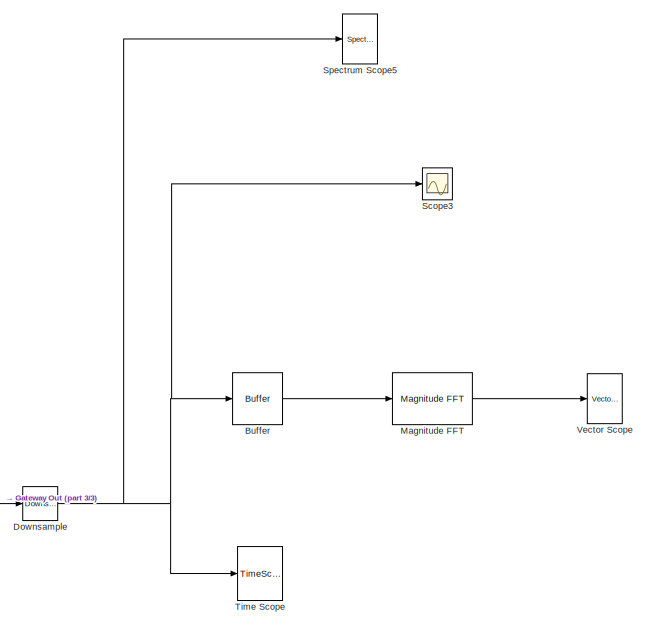
[diagram: root canvas - part 1/3, top right region]
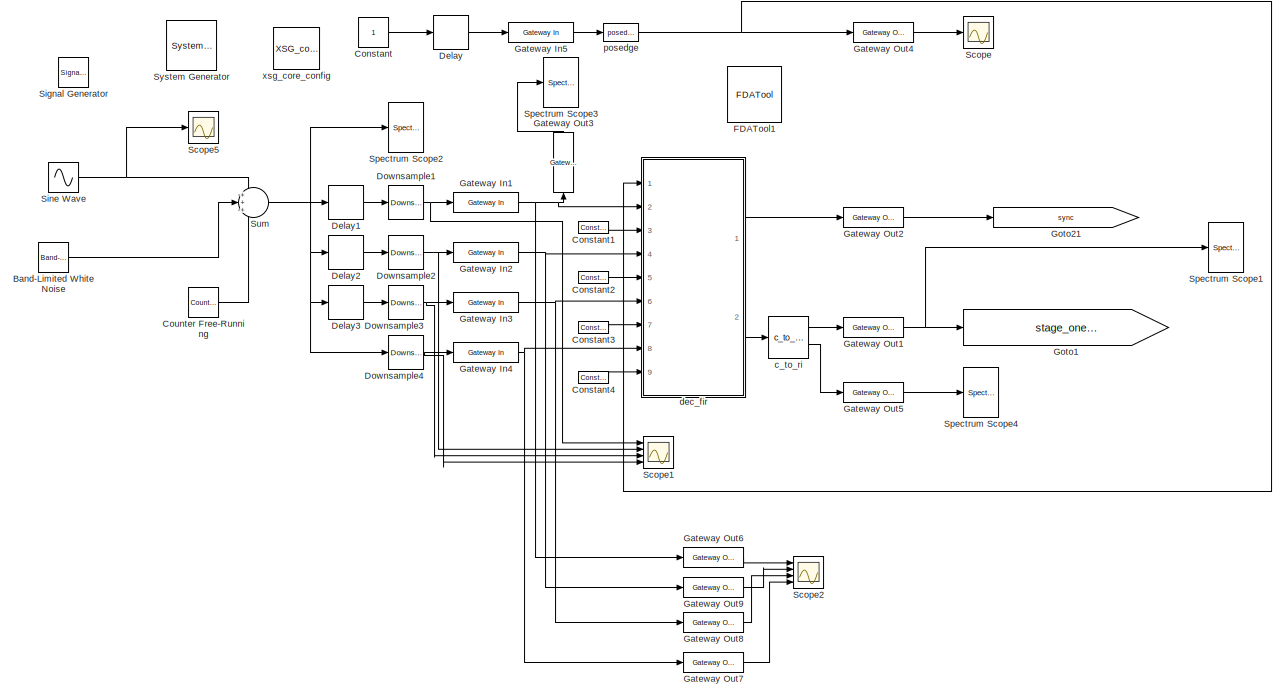
[diagram: root canvas - part 2/3, middle left region]
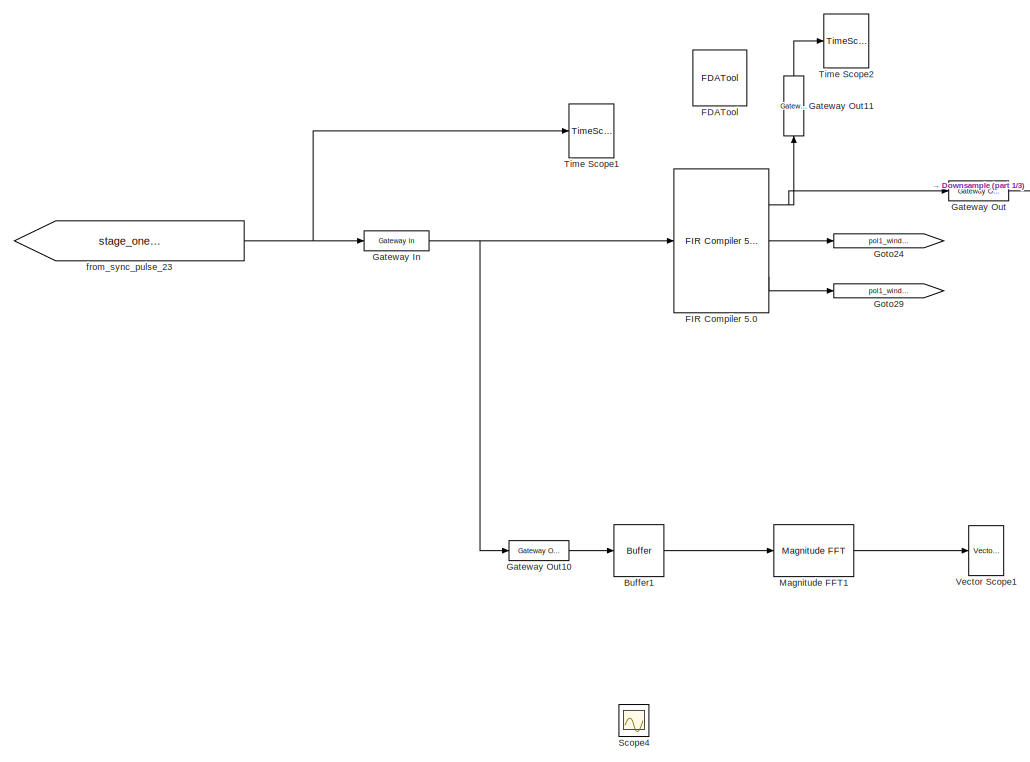
[diagram: root canvas - part 3/3, central region]
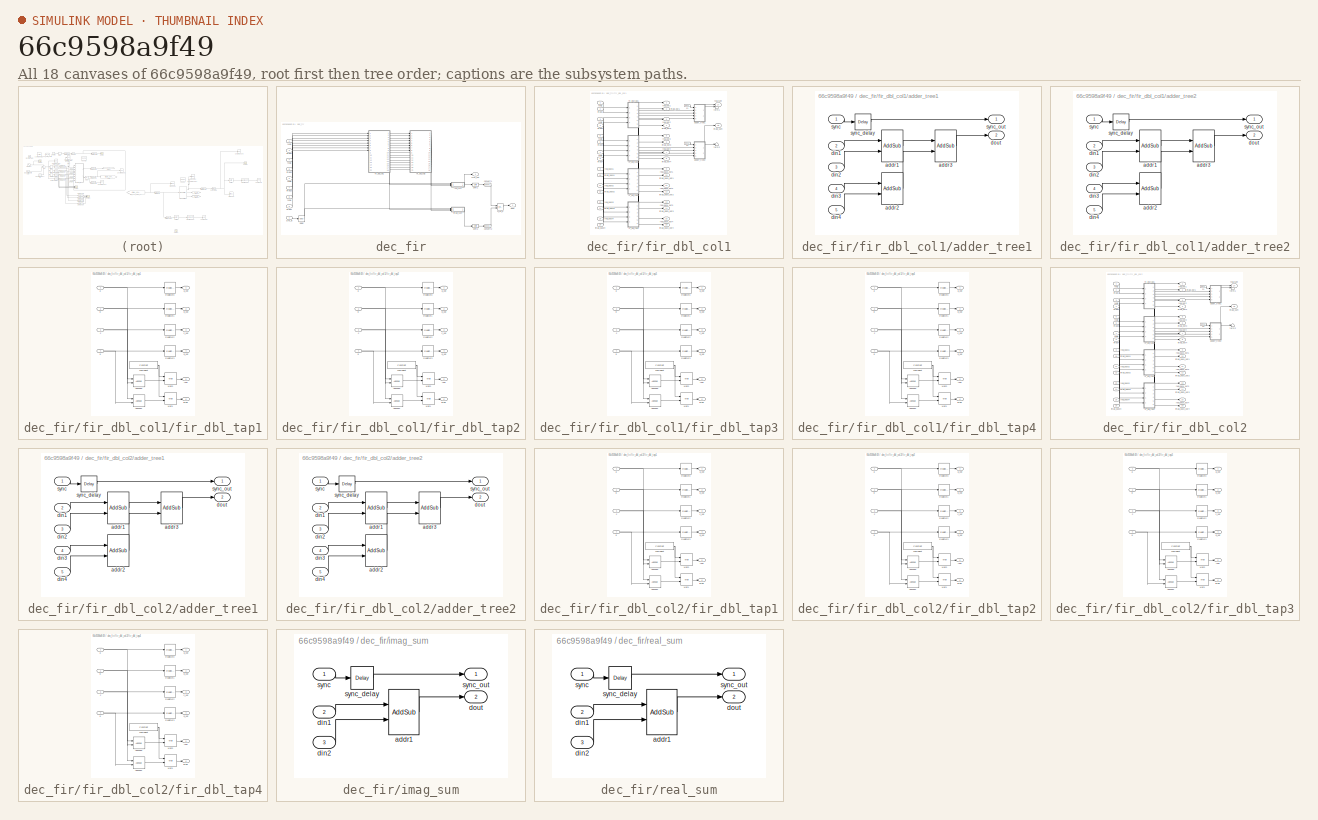
[diagram: thumbnail index - all 18 canvases of the model, root first then tree order]
MODEL slx_66c9598a9f49
KIND model
BLOCK [Reference]  System Generator  REF=xbsIndex_r4/ System Generator
  AttributesFormatString = System\nGenerator
  Impl_file = ISE Defaults
  Ports = []
  SourceBlock = xbsIndex_r4/ System Generator
  SourceType = Xilinx System Generator Block
  Synth_file = XST Defaults
  Tag = genX
  UserDataPersistent = on
  block_type = sysgen
  clock_wrapper = Clock Enables
  core_generation = According to Block Masks
  dbl_ovrd = According to Block Masks
  dcm_input_clock_period = 100
  deprecated_control = off
  directory = ./window_design/sysgen
  eval_field = 0
  has_advanced_control = 0
  incr_netlist = off
  infoedit = System Generator
  package = ff1759
  part = xc6vsx475t
  proj_type = Project Navigator
  run_coregen = off
  sg_icon_stat = 50,50,0,0,token,white,0,58c5b5770fe5f7c311f53dbc6e73f0f6,right,,[ ],[ ]
  sg_mask_display = fprintf('','COMMENT: begin icon graphics');\npatch([0 50 50 0 0 ],[0 0 50 50 0 ],[1 1 1 ]);\npatch([1.6375 16.81 27.31 37.81 48.31 27.31 12.1375 1.6375 ],[36.655 36.655 47.155 36.655 47.155 47.155 47.155 36.655 ],[0.933333 0.203922 0.141176 ]);\npatch([12.1375 27.31 16.81 1.6375 12.1375 ],[26.155 26.155 36.655 36.655 26.155 ],[0.698039 0.0313725 0.219608 ]);\npatch([1.6375 16.81 27.31 12.1375 1.6375 ]...<+327ch>
  sggui_pos = 532, 30,464,470
  simulink_period = 1
  speed = -1
  synthesis_tool = XST
  sysclk_period = 6.25
  testbench = off
  trim_vbits = Everywhere in SubSystem
  xilinxfamily = virtex6
BLOCK [Reference] Band-Limited White Noise  REF=simulink/Sources/Band-Limited
White Noise
  Cov = [0.01]
  Ports = [0, 1]
  SourceBlock = simulink/Sources/Band-Limited\nWhite Noise
  SourceType = Band-Limited White Noise.
  Ts = 0.25
  VectorParams1D = on
  seed = [23341]
BLOCK [Buffer] Buffer
  N = 256
  TreatMby1Signals = One channel
  ic = 20
BLOCK [Buffer] Buffer1
  N = 1024
  TreatMby1Signals = One channel
BLOCK [Constant] Constant
BLOCK [Reference] Constant1  REF=xbsIndex_r4/Constant
  Ports = [0, 1]
  SourceBlock = xbsIndex_r4/Constant
  SourceType = Xilinx Constant Block Block
  arith_type = Signed (2's comp)
  bin_pt = 15
  block_type = constant
  carry = CIN
  const = 0
  dbl_ovrd = off
  dsp48_infoedit = The use of this block for DSP48 instructions is deprecated.  Please use the Opmode block.
  equ = P=C
  exp_width = 8
  explicit_period = on
  frac_width = 24
  gui_display_data_type = Fixed-point
  has_advanced_control = 0
  inp1 = P
  inp2 = PCIN>>17
  n_bits = 16
  opr = +
  opselect = C
  period = 1
  preci_type = Single
  sg_icon_stat = 30,12,0,1,white,blue,0,bf4ddd8b,right,,[ ],[ ]
  sg_mask_display = fprintf('','COMMENT: begin icon graphics');\npatch([0 30 30 0 0 ],[0 0 12 12 0 ],[0.77 0.82 0.91 ]);\nplot([0 30 30 0 0 ],[0 0 12 12 0 ]);\npatch([12.775 14.22 15.22 16.22 17.22 15.22 13.775 12.775 ],[7.11 7.11 8.11 7.11 8.11 8.11 8.11 7.11 ],[1 1 1 ]);\npatch([13.775 15.22 14.22 12.775 13.775 ],[6.11 6.11 7.11 7.11 6.11 ],[0.931 0.946 0.973 ]);\npatch([12.775 14.22 15.22 13.775 12.775 ],[5.11 5.11 6.1...<+302ch>  <repeated x4 — deduplicated; at blocks: Constant1, Constant2, Constant3, Constant4>
  sggui_pos = 85,44,418,478
BLOCK [Reference] Constant2  REF=xbsIndex_r4/Constant
  Ports = [0, 1]
  SourceBlock = xbsIndex_r4/Constant
  SourceType = Xilinx Constant Block Block
  arith_type = Signed (2's comp)
  bin_pt = 15
  block_type = constant
  carry = CIN
  const = 0
  dbl_ovrd = off
  dsp48_infoedit = The use of this block for DSP48 instructions is deprecated.  Please use the Opmode block.
  equ = P=C
  exp_width = 8
  explicit_period = on
  frac_width = 24
  gui_display_data_type = Fixed-point
  has_advanced_control = 0
  inp1 = P
  inp2 = PCIN>>17
  n_bits = 16
  opr = +
  opselect = C
  period = 1
  preci_type = Single
  sg_icon_stat = 30,12,0,1,white,blue,0,bf4ddd8b,right,,[ ],[ ]
  sggui_pos = 85,44,418,478
BLOCK [Reference] Constant3  REF=xbsIndex_r4/Constant
  Ports = [0, 1]
  SourceBlock = xbsIndex_r4/Constant
  SourceType = Xilinx Constant Block Block
  arith_type = Signed (2's comp)
  bin_pt = 15
  block_type = constant
  carry = CIN
  const = 0
  dbl_ovrd = off
  dsp48_infoedit = The use of this block for DSP48 instructions is deprecated.  Please use the Opmode block.
  equ = P=C
  exp_width = 8
  explicit_period = on
  frac_width = 24
  gui_display_data_type = Fixed-point
  has_advanced_control = 0
  inp1 = P
  inp2 = PCIN>>17
  n_bits = 16
  opr = +
  opselect = C
  period = 1
  preci_type = Single
  sg_icon_stat = 30,12,0,1,white,blue,0,bf4ddd8b,right,,[ ],[ ]
  sggui_pos = 85,44,418,478
BLOCK [Reference] Constant4  REF=xbsIndex_r4/Constant
  Ports = [0, 1]
  SourceBlock = xbsIndex_r4/Constant
  SourceType = Xilinx Constant Block Block
  arith_type = Signed (2's comp)
  bin_pt = 15
  block_type = constant
  carry = CIN
  const = 0
  dbl_ovrd = off
  dsp48_infoedit = The use of this block for DSP48 instructions is deprecated.  Please use the Opmode block.
  equ = P=C
  exp_width = 8
  explicit_period = on
  frac_width = 24
  gui_display_data_type = Fixed-point
  has_advanced_control = 0
  inp1 = P
  inp2 = PCIN>>17
  n_bits = 16
  opr = +
  opselect = C
  period = 1
  preci_type = Single
  sg_icon_stat = 30,12,0,1,white,blue,0,bf4ddd8b,right,,[ ],[ ]
  sggui_pos = 85,44,418,478
BLOCK [Reference] Counter Free-Running  REF=simulink/Sources/Counter
Free-Running
  Commented = on
  NumBits = 8
  Ports = [0, 1]
  SourceBlock = simulink/Sources/Counter\nFree-Running
  SourceType = Counter Free-Running
  tsamp = 0.25
BLOCK [Delay] Delay
  DelayLength = 3
  InputPortMap = u0
  Ports = [1, 1]
BLOCK [Delay] Delay1
  DelayLength = 3
  InputPortMap = u0
  Ports = [1, 1]
BLOCK [Delay] Delay2
  InputPortMap = u0
  Ports = [1, 1]
BLOCK [Delay] Delay3
  DelayLength = 1
  InputPortMap = u0
  Ports = [1, 1]
BLOCK [Reference] Downsample  REF=dspsigops/Downsample
  InputProcessing = Elements as channels (sample based)
  N = 50
  Ports = [1, 1]
  RateOptions = Allow multirate processing
  SourceBlock = dspsigops/Downsample
  SourceType = Downsample
  UserDataPersistent = on
  fmode = Maintain input frame size
  ic = 0
  phase = 0
  smode = Allow multirate
BLOCK [Reference] Downsample1  REF=dspsigops/Downsample
  InputProcessing = Elements as channels (sample based)
  N = 4
  Ports = [1, 1]
  RateOptions = Enforce single-rate processing
  SourceBlock = dspsigops/Downsample
  SourceType = Downsample
  UserDataPersistent = on
  fmode = Maintain input frame size
  ic = 0
  phase = 0
  smode = Allow multirate
BLOCK [Reference] Downsample2  REF=dspsigops/Downsample
  InputProcessing = Elements as channels (sample based)
  N = 4
  Ports = [1, 1]
  RateOptions = Enforce single-rate processing
  SourceBlock = dspsigops/Downsample
  SourceType = Downsample
  UserDataPersistent = on
  fmode = Maintain input frame size
  ic = 0
  phase = 0
  smode = Allow multirate
BLOCK [Reference] Downsample3  REF=dspsigops/Downsample
  InputProcessing = Elements as channels (sample based)
  N = 4
  Ports = [1, 1]
  RateOptions = Enforce single-rate processing
  SourceBlock = dspsigops/Downsample
  SourceType = Downsample
  UserDataPersistent = on
  fmode = Maintain input frame size
  ic = 0
  phase = 0
  smode = Allow multirate
BLOCK [Reference] Downsample4  REF=dspsigops/Downsample
  InputProcessing = Elements as channels (sample based)
  N = 4
  Ports = [1, 1]
  RateOptions = Enforce single-rate processing
  SourceBlock = dspsigops/Downsample
  SourceType = Downsample
  UserDataPersistent = on
  fmode = Maintain input frame size
  ic = 0
  phase = 0
  smode = Allow multirate
BLOCK [Reference] FDATool  REF=xbsIndex_r4/FDATool
  Ports = []
  SourceBlock = xbsIndex_r4/FDATool
  SourceType = Xilinx FDATool Interface Block
  UserDataPersistent = on
  block_type = fdatool
  has_advanced_control = 0
  infoedit = FDATool
  sg_icon_stat = 54,56,-1,-1,blue,white,0,07734,right,,[ ],[ ]
  sg_mask_display = fprintf('','COMMENT: begin icon graphics');\npatch([0 54 54 0 0 ],[0 0 56 56 0 ],[1 1 1 ]);\nplot([0 54 54 0 0 ],[0 0 56 56 0 ]);\npatch([11.425 21.54 28.54 35.54 42.54 28.54 18.425 11.425 ],[35.77 35.77 42.77 35.77 42.77 42.77 42.77 35.77 ],[0.839 0.874 0.937 ]);\npatch([18.425 28.54 21.54 11.425 18.425 ],[28.77 28.77 35.77 35.77 28.77 ],[0.77 0.82 0.91 ]);\npatch([11.425 21.54 28.54 18.425 11.425 ],[...<+308ch>
  sggui_pos = -1,-1,-1,-1
BLOCK [Reference] FDATool1  REF=xbsIndex_r4/FDATool
  Ports = []
  SourceBlock = xbsIndex_r4/FDATool
  SourceType = Xilinx FDATool Interface Block
  UserDataPersistent = on
  block_type = fdatool
  has_advanced_control = 0
  infoedit = FDATool
  sg_icon_stat = 54,56,-1,-1,blue,white,0,07734,right,,[ ],[ ]
  sg_mask_display = fprintf('','COMMENT: begin icon graphics');\npatch([0 54 54 0 0 ],[0 0 56 56 0 ],[1 1 1 ]);\nplot([0 54 54 0 0 ],[0 0 56 56 0 ]);\npatch([11.425 21.54 28.54 35.54 42.54 28.54 18.425 11.425 ],[35.77 35.77 42.77 35.77 42.77 42.77 42.77 35.77 ],[0.839 0.874 0.937 ]);\npatch([18.425 28.54 21.54 11.425 18.425 ],[28.77 28.77 35.77 35.77 28.77 ],[0.77 0.82 0.91 ]);\npatch([11.425 21.54 28.54 18.425 11.425 ],[...<+308ch>
  sggui_pos = -1,-1,-1,-1
BLOCK [Reference] FIR Compiler 5.0   REF=xbsIndex_r4/FIR Compiler 5.0 
  Ports = [1, 3]
  SourceBlock = xbsIndex_r4/FIR Compiler 5.0
  SourceType = Xilinx FIR Compiler 5.0 Block
  allow_rounding_approximation = off
  bestprecision = on
  block_type = fir_compiler_v5_0
  chan_in_adv = 0
  coefficient_buffer_type = Automatic
  coefficient_fractional_bits = 35
  coefficient_reload = off
  coefficient_sets = 1
  coefficient_sign = Unsigned
  coefficient_structure = Non_Symmetric
  coefficient_width = 25
  coefficientvector = coef
  columnconfig = '42'
  data_buffer_type = Automatic
  data_fractional_bits = 0
  data_sign = Signed
  data_width = 16
  decimation_rate = 50
  dsptool_ready = true
  filter_architecture = Systolic_Multiply_Accumulate
  filter_selection = 1
  filter_type = Decimation
  gui_behaviour = Sysgen
  hardwareoversamplingrate = 1
  has_advanced_control = 0
  has_ce = off
  has_data_valid = off
  has_nd = off
  has_sclr = off
  input_buffer_type = Automatic
  inter_column_pipe_length = 4
  interpolation_rate = 1
  ip_name = FIR Compiler
  ip_version = 5.0
  ip_wrap_arbitrary_binary_point = true
  ipcore_fpga_part = xlipgetpartsetting(gcb, {'virtex4', 'xc4vsx35', '-10', 'ff668'})
  ipcore_usecache = true
  ipcore_useipmodelcache = true
  ipcore_xco_need_fpga_part = true
  multi_column_support = Disabled
  number_channels = 1
  number_paths = 1
  optimization_goal = Area
  output_buffer_type = Automatic
  output_rounding_mode = Convergent_Rounding_to_Even
  output_width = 18
  passband_max = 0.5
  passband_min = 0.0
  port_translation_map = { 'ce' => 'en', 'sclr' => 'rst' }
  preference_for_other_storage = Automatic
  quantization = Maximize_Dynamic_Range
  rate_change_type = Integer
  ratespecification = Maximum_Possible
  registered_output = true
  run_core_at_system_period = true
  sampleperiod = 1
  sg_icon_stat = 95,144,1,3,white,blue,0,671da946,right,,[ ],[ ]
  sg_mask_display = fprintf('','COMMENT: begin icon graphics');\npatch([0 95 95 0 0 ],[0 0 144 144 0 ],[0.77 0.82 0.91 ]);\nplot([0 95 95 0 0 ],[0 0 144 144 0 ]);\npatch([18.075 36.86 49.86 62.86 75.86 49.86 31.075 18.075 ],[86.43 86.43 99.43 86.43 99.43 99.43 99.43 86.43 ],[1 1 1 ]);\npatch([31.075 49.86 36.86 18.075 31.075 ],[73.43 73.43 86.43 86.43 73.43 ],[0.931 0.946 0.973 ]);\npatch([18.075 36.86 49.86 31.075 18.075...<+468ch>
  sggui_pos = 942,349,501,968
  stopband_max = 1.0
  stopband_min = 0.5
  structural_sim = false
  usechan_in_adv = off
  wrapper_available = true
  xl_area = [0,0,0,0,0,0,0]
  xl_use_area = off
  zero_pack_factor = 1
BLOCK [Reference] Gateway In  REF=xbsIndex_r4/Gateway In
  ADCChannel = '1'
  LOCs = {}
  Ports = [1, 1]
  SourceBlock = xbsIndex_r4/Gateway In
  SourceType = Xilinx Gateway In Block
  UseAsADC = off
  arith_type = Signed  (2's comp)
  bin_pt = 15
  block_type = gatewayin
  dbl_ovrd = off
  exp_width = 8
  frac_width = 24
  gui_display_data_type = Fixed-point
  has_advanced_control = 0
  hdl_port = on
  infoedit = Gateway in block.  Converts inputs of type Simulink integer, single, double and fixed-point to  Xilinx fixed-point or floating-point data type.<br><br>Hardware notes:  In hardware these blocks become top level input ports.  <repeated x6 — deduplicated; at blocks: Gateway In, Gateway In1, Gateway In2, Gateway In3, Gateway In4, Gateway In5>
  inherit_from_input = off
  locs_specified = off
  n_bits = 16
  overflow = Saturate
  period = 1
  preci_type = Single
  quantization = Round  (unbiased: +/- Inf)
  sg_icon_stat = 65,20,1,1,white,yellow,1,00d3666e,right,,[ ],[ ]
  sg_mask_display = fprintf('','COMMENT: begin icon graphics');\npatch([0 65 65 0 0 ],[0 0 20 20 0 ],[0.95 0.93 0.65 ]);\nplot([0 65 65 0 0 ],[0 0 20 20 0 ]);\npatch([27.55 30.44 32.44 34.44 36.44 32.44 29.55 27.55 ],[12.22 12.22 14.22 12.22 14.22 14.22 14.22 12.22 ],[1 1 1 ]);\npatch([29.55 32.44 30.44 27.55 29.55 ],[10.22 10.22 12.22 12.22 10.22 ],[0.985 0.979 0.895 ]);\npatch([27.55 30.44 32.44 29.55 27.55 ],[8.22 8.22...<+383ch>  <repeated x6 — deduplicated; at blocks: Gateway In, Gateway In1, Gateway In2, Gateway In3, Gateway In4, Gateway In5>
  sggui_pos = 1280,251,464,695
  timing_constraint = None
  xl_area = [0,0,0,0,0,0,0]
  xl_use_area = off
BLOCK [Reference] Gateway In1  REF=xbsIndex_r4/Gateway In
  ADCChannel = '1'
  LOCs = {}
  Ports = [1, 1]
  SourceBlock = xbsIndex_r4/Gateway In
  SourceType = Xilinx Gateway In Block
  UseAsADC = off
  arith_type = Signed  (2's comp)
  bin_pt = 15
  block_type = gatewayin
  dbl_ovrd = off
  exp_width = 8
  frac_width = 24
  gui_display_data_type = Fixed-point
  has_advanced_control = 0
  hdl_port = on
  inherit_from_input = off
  locs_specified = off
  n_bits = 16
  overflow = Saturate
  period = 1
  preci_type = Single
  quantization = Round  (unbiased: +/- Inf)
  sg_icon_stat = 65,20,1,1,white,yellow,1,00d3666e,right,,[ ],[ ]
  sggui_pos = 1280,251,464,695
  timing_constraint = None
  xl_area = [0,0,0,0,0,0,0]
  xl_use_area = off
BLOCK [Reference] Gateway In2  REF=xbsIndex_r4/Gateway In
  ADCChannel = '1'
  LOCs = {}
  Ports = [1, 1]
  SourceBlock = xbsIndex_r4/Gateway In
  SourceType = Xilinx Gateway In Block
  UseAsADC = off
  arith_type = Signed  (2's comp)
  bin_pt = 15
  block_type = gatewayin
  dbl_ovrd = off
  exp_width = 8
  frac_width = 24
  gui_display_data_type = Fixed-point
  has_advanced_control = 0
  hdl_port = on
  inherit_from_input = off
  locs_specified = off
  n_bits = 16
  overflow = Saturate
  period = 1
  preci_type = Single
  quantization = Round  (unbiased: +/- Inf)
  sg_icon_stat = 65,20,1,1,white,yellow,1,00d3666e,right,,[ ],[ ]
  sggui_pos = 1280,251,464,695
  timing_constraint = None
  xl_area = [0,0,0,0,0,0,0]
  xl_use_area = off
BLOCK [Reference] Gateway In3  REF=xbsIndex_r4/Gateway In
  ADCChannel = '1'
  LOCs = {}
  Ports = [1, 1]
  SourceBlock = xbsIndex_r4/Gateway In
  SourceType = Xilinx Gateway In Block
  UseAsADC = off
  arith_type = Signed  (2's comp)
  bin_pt = 15
  block_type = gatewayin
  dbl_ovrd = off
  exp_width = 8
  frac_width = 24
  gui_display_data_type = Fixed-point
  has_advanced_control = 0
  hdl_port = on
  inherit_from_input = off
  locs_specified = off
  n_bits = 16
  overflow = Saturate
  period = 1
  preci_type = Single
  quantization = Round  (unbiased: +/- Inf)
  sg_icon_stat = 65,20,1,1,white,yellow,1,00d3666e,right,,[ ],[ ]
  sggui_pos = 1280,251,464,695
  timing_constraint = None
  xl_area = [0,0,0,0,0,0,0]
  xl_use_area = off
BLOCK [Reference] Gateway In4  REF=xbsIndex_r4/Gateway In
  ADCChannel = '1'
  LOCs = {}
  Ports = [1, 1]
  SourceBlock = xbsIndex_r4/Gateway In
  SourceType = Xilinx Gateway In Block
  UseAsADC = off
  arith_type = Signed  (2's comp)
  bin_pt = 15
  block_type = gatewayin
  dbl_ovrd = off
  exp_width = 8
  frac_width = 24
  gui_display_data_type = Fixed-point
  has_advanced_control = 0
  hdl_port = on
  inherit_from_input = off
  locs_specified = off
  n_bits = 16
  overflow = Saturate
  period = 1
  preci_type = Single
  quantization = Round  (unbiased: +/- Inf)
  sg_icon_stat = 65,20,1,1,white,yellow,1,00d3666e,right,,[ ],[ ]
  sggui_pos = 1280,251,464,695
  timing_constraint = None
  xl_area = [0,0,0,0,0,0,0]
  xl_use_area = off
BLOCK [Reference] Gateway In5  REF=xbsIndex_r4/Gateway In
  ADCChannel = '1'
  LOCs = {}
  Ports = [1, 1]
  SourceBlock = xbsIndex_r4/Gateway In
  SourceType = Xilinx Gateway In Block
  UseAsADC = off
  arith_type = Boolean
  bin_pt = 15
  block_type = gatewayin
  dbl_ovrd = off
  exp_width = 8
  frac_width = 24
  gui_display_data_type = Boolean
  has_advanced_control = 0
  hdl_port = on
  inherit_from_input = off
  locs_specified = off
  n_bits = 16
  overflow = Saturate
  period = 1
  preci_type = Single
  quantization = Round  (unbiased: +/- Inf)
  sg_icon_stat = 65,20,1,1,white,yellow,1,00d3666e,right,,[ ],[ ]
  sggui_pos = 1280,251,464,695
  timing_constraint = None
  xl_area = [0,0,0,0,0,0,0]
  xl_use_area = off
BLOCK [Reference] Gateway Out  REF=xbsIndex_r4/Gateway Out
  DACChannel = '1'
  LOCs = {}
  Ports = [1, 1]
  SourceBlock = xbsIndex_r4/Gateway Out
  SourceType = Xilinx Gateway Out Block
  UseAsDAC = off
  block_type = gatewayout
  has_advanced_control = 0
  hdl_port = off
  infoedit = Gateway out block.  Converts Xilinx fixed-point or floating-point type inputs into ouputs of type Simulink integer, single, double, or fixed-point.<br><br>Hardware notes:  In hardware these blocks become top level output ports or are discarded, depending on how they are configured.  <repeated x12 — deduplicated; at blocks: Gateway Out, Gateway Out1, Gateway Out10, Gateway Out11, Gateway Out2, Gateway Out3, Gateway Out4, Gateway Out5, Gateway Out6, Gateway Out7, Gateway Out8, Gateway Out9>
  inherit_from_input = on
  locs_specified = off
  sg_icon_stat = 60,20,1,1,white,grey,1,632ec840,right,,[ ],[ ]
  sg_mask_display = fprintf('','COMMENT: begin icon graphics');\npatch([0 60 60 0 0 ],[0 0 20 20 0 ],[0.88 0.88 0.88 ]);\nplot([0 60 60 0 0 ],[0 0 20 20 0 ]);\npatch([25.55 28.44 30.44 32.44 34.44 30.44 27.55 25.55 ],[12.22 12.22 14.22 12.22 14.22 14.22 14.22 12.22 ],[1 1 1 ]);\npatch([27.55 30.44 28.44 25.55 27.55 ],[10.22 10.22 12.22 12.22 10.22 ],[0.964 0.964 0.964 ]);\npatch([25.55 28.44 30.44 27.55 25.55 ],[8.22 8.22...<+381ch>
  sggui_pos = 677,464,448,671
  timing_constraint = None
  xl_area = [0,0,0,0,0,0,0]
  xl_use_area = off
BLOCK [Reference] Gateway Out1  REF=xbsIndex_r4/Gateway Out
  DACChannel = '1'
  LOCs = {}
  Ports = [1, 1]
  SourceBlock = xbsIndex_r4/Gateway Out
  SourceType = Xilinx Gateway Out Block
  UseAsDAC = off
  block_type = gatewayout
  has_advanced_control = 0
  hdl_port = on
  inherit_from_input = off
  locs_specified = off
  sg_icon_stat = 60,20,1,1,white,yellow,1,cc31b7ac,right,,[ ],[ ]
  sg_mask_display = fprintf('','COMMENT: begin icon graphics');\npatch([0 60 60 0 0 ],[0 0 20 20 0 ],[0.95 0.93 0.65 ]);\nplot([0 60 60 0 0 ],[0 0 20 20 0 ]);\npatch([25.55 28.44 30.44 32.44 34.44 30.44 27.55 25.55 ],[12.22 12.22 14.22 12.22 14.22 14.22 14.22 12.22 ],[1 1 1 ]);\npatch([27.55 30.44 28.44 25.55 27.55 ],[10.22 10.22 12.22 12.22 10.22 ],[0.985 0.979 0.895 ]);\npatch([25.55 28.44 30.44 27.55 25.55 ],[8.22 8.22...<+384ch>  <repeated x9 — deduplicated; at blocks: Gateway Out1, Gateway Out10, Gateway Out2, Gateway Out4, Gateway Out5, Gateway Out6, Gateway Out7, Gateway Out8, Gateway Out9>
  sggui_pos = 655,175,448,671
  timing_constraint = None
  xl_area = [0,0,0,0,0,0,0]
  xl_use_area = off
BLOCK [Reference] Gateway Out10  REF=xbsIndex_r4/Gateway Out
  DACChannel = '1'
  LOCs = {}
  Ports = [1, 1]
  SourceBlock = xbsIndex_r4/Gateway Out
  SourceType = Xilinx Gateway Out Block
  UseAsDAC = off
  block_type = gatewayout
  has_advanced_control = 0
  hdl_port = on
  inherit_from_input = off
  locs_specified = off
  sg_icon_stat = 60,20,1,1,white,yellow,1,cc31b7ac,right,,[ ],[ ]
  sggui_pos = 655,175,448,671
  timing_constraint = None
  xl_area = [0,0,0,0,0,0,0]
  xl_use_area = off
BLOCK [Reference] Gateway Out11  REF=xbsIndex_r4/Gateway Out
  DACChannel = '1'
  LOCs = {}
  Ports = [1, 1]
  SourceBlock = xbsIndex_r4/Gateway Out
  SourceType = Xilinx Gateway Out Block
  UseAsDAC = off
  block_type = gatewayout
  has_advanced_control = 0
  hdl_port = on
  inherit_from_input = off
  locs_specified = off
  sg_icon_stat = 20,60,1,1,white,yellow,1,cc31b7ac,up,,[ ],[ ]
  sg_mask_display = fprintf('','COMMENT: begin icon graphics');\npatch([0 20 20 0 0 ],[0 0 60 60 0 ],[0.95 0.93 0.65 ]);\nplot([0 20 20 0 0 ],[0 0 60 60 0 ]);\npatch([5.55 8.44 10.44 12.44 14.44 10.44 7.55 5.55 ],[32.22 32.22 34.22 32.22 34.22 34.22 34.22 32.22 ],[1 1 1 ]);\npatch([7.55 10.44 8.44 5.55 7.55 ],[30.22 30.22 32.22 32.22 30.22 ],[0.985 0.979 0.895 ]);\npatch([5.55 8.44 10.44 7.55 5.55 ],[28.22 28.22 30.22 30....<+378ch>
  sggui_pos = -1,-1,-1,-1
  timing_constraint = None
  xl_area = [0,0,0,0,0,0,0]
  xl_use_area = off
BLOCK [Reference] Gateway Out2  REF=xbsIndex_r4/Gateway Out
  DACChannel = '1'
  LOCs = {}
  Ports = [1, 1]
  SourceBlock = xbsIndex_r4/Gateway Out
  SourceType = Xilinx Gateway Out Block
  UseAsDAC = off
  block_type = gatewayout
  has_advanced_control = 0
  hdl_port = on
  inherit_from_input = off
  locs_specified = off
  sg_icon_stat = 60,20,1,1,white,yellow,1,cc31b7ac,right,,[ ],[ ]
  sggui_pos = 655,175,448,671
  timing_constraint = None
  xl_area = [0,0,0,0,0,0,0]
  xl_use_area = off
BLOCK [Reference] Gateway Out3  REF=xbsIndex_r4/Gateway Out
  DACChannel = '1'
  LOCs = {}
  Ports = [1, 1]
  SourceBlock = xbsIndex_r4/Gateway Out
  SourceType = Xilinx Gateway Out Block
  UseAsDAC = off
  block_type = gatewayout
  has_advanced_control = 0
  hdl_port = on
  inherit_from_input = off
  locs_specified = off
  sg_icon_stat = 20,60,1,1,white,yellow,1,cc31b7ac,up,,[ ],[ ]
  sg_mask_display = fprintf('','COMMENT: begin icon graphics');\npatch([0 20 20 0 0 ],[0 0 60 60 0 ],[0.95 0.93 0.65 ]);\nplot([0 20 20 0 0 ],[0 0 60 60 0 ]);\npatch([5.55 8.44 10.44 12.44 14.44 10.44 7.55 5.55 ],[32.22 32.22 34.22 32.22 34.22 34.22 34.22 32.22 ],[1 1 1 ]);\npatch([7.55 10.44 8.44 5.55 7.55 ],[30.22 30.22 32.22 32.22 30.22 ],[0.985 0.979 0.895 ]);\npatch([5.55 8.44 10.44 7.55 5.55 ],[28.22 28.22 30.22 30....<+378ch>
  sggui_pos = 655,175,448,671
  timing_constraint = None
  xl_area = [0,0,0,0,0,0,0]
  xl_use_area = off
BLOCK [Reference] Gateway Out4  REF=xbsIndex_r4/Gateway Out
  DACChannel = '1'
  LOCs = {}
  Ports = [1, 1]
  SourceBlock = xbsIndex_r4/Gateway Out
  SourceType = Xilinx Gateway Out Block
  UseAsDAC = off
  block_type = gatewayout
  has_advanced_control = 0
  hdl_port = on
  inherit_from_input = off
  locs_specified = off
  sg_icon_stat = 60,20,1,1,white,yellow,1,cc31b7ac,right,,[ ],[ ]
  sggui_pos = 655,175,448,671
  timing_constraint = None
  xl_area = [0,0,0,0,0,0,0]
  xl_use_area = off
BLOCK [Reference] Gateway Out5  REF=xbsIndex_r4/Gateway Out
  DACChannel = '1'
  LOCs = {}
  Ports = [1, 1]
  SourceBlock = xbsIndex_r4/Gateway Out
  SourceType = Xilinx Gateway Out Block
  UseAsDAC = off
  block_type = gatewayout
  has_advanced_control = 0
  hdl_port = on
  inherit_from_input = off
  locs_specified = off
  sg_icon_stat = 60,20,1,1,white,yellow,1,cc31b7ac,right,,[ ],[ ]
  sggui_pos = 655,175,448,671
  timing_constraint = None
  xl_area = [0,0,0,0,0,0,0]
  xl_use_area = off
BLOCK [Reference] Gateway Out6  REF=xbsIndex_r4/Gateway Out
  DACChannel = '1'
  LOCs = {}
  Ports = [1, 1]
  SourceBlock = xbsIndex_r4/Gateway Out
  SourceType = Xilinx Gateway Out Block
  UseAsDAC = off
  block_type = gatewayout
  has_advanced_control = 0
  hdl_port = on
  inherit_from_input = off
  locs_specified = off
  sg_icon_stat = 60,20,1,1,white,yellow,1,cc31b7ac,right,,[ ],[ ]
  sggui_pos = 655,175,448,671
  timing_constraint = None
  xl_area = [0,0,0,0,0,0,0]
  xl_use_area = off
BLOCK [Reference] Gateway Out7  REF=xbsIndex_r4/Gateway Out
  DACChannel = '1'
  LOCs = {}
  Ports = [1, 1]
  SourceBlock = xbsIndex_r4/Gateway Out
  SourceType = Xilinx Gateway Out Block
  UseAsDAC = off
  block_type = gatewayout
  has_advanced_control = 0
  hdl_port = on
  inherit_from_input = off
  locs_specified = off
  sg_icon_stat = 60,20,1,1,white,yellow,1,cc31b7ac,right,,[ ],[ ]
  sggui_pos = 655,175,448,671
  timing_constraint = None
  xl_area = [0,0,0,0,0,0,0]
  xl_use_area = off
BLOCK [Reference] Gateway Out8  REF=xbsIndex_r4/Gateway Out
  DACChannel = '1'
  LOCs = {}
  Ports = [1, 1]
  SourceBlock = xbsIndex_r4/Gateway Out
  SourceType = Xilinx Gateway Out Block
  UseAsDAC = off
  block_type = gatewayout
  has_advanced_control = 0
  hdl_port = on
  inherit_from_input = off
  locs_specified = off
  sg_icon_stat = 60,20,1,1,white,yellow,1,cc31b7ac,right,,[ ],[ ]
  sggui_pos = 655,175,448,671
  timing_constraint = None
  xl_area = [0,0,0,0,0,0,0]
  xl_use_area = off
BLOCK [Reference] Gateway Out9  REF=xbsIndex_r4/Gateway Out
  DACChannel = '1'
  LOCs = {}
  Ports = [1, 1]
  SourceBlock = xbsIndex_r4/Gateway Out
  SourceType = Xilinx Gateway Out Block
  UseAsDAC = off
  block_type = gatewayout
  has_advanced_control = 0
  hdl_port = on
  inherit_from_input = off
  locs_specified = off
  sg_icon_stat = 60,20,1,1,white,yellow,1,cc31b7ac,right,,[ ],[ ]
  sggui_pos = 655,175,448,671
  timing_constraint = None
  xl_area = [0,0,0,0,0,0,0]
  xl_use_area = off
BLOCK [Goto] Goto1
  GotoTag = stage_one_filter_output
BLOCK [Goto] Goto21
  GotoTag = sync
BLOCK [Goto] Goto24
  GotoTag = pol1_window1_rfd
BLOCK [Goto] Goto29
  GotoTag = pol1_window1_rdy
BLOCK [Reference] Magnitude FFT  REF=dspspect3/Magnitude
FFT
  FFTImplementation = Auto
  Ports = [1, 1]
  SourceBlock = dspspect3/Magnitude\nFFT
  SourceType = Magnitude FFT
  fftLenInherit = off
  fftsize = 256
  mag_or_magsq = Magnitude squared
BLOCK [Reference] Magnitude FFT1  REF=dspspect3/Magnitude
FFT
  FFTImplementation = Auto
  Ports = [1, 1]
  SourceBlock = dspspect3/Magnitude\nFFT
  SourceType = Magnitude FFT
  fftLenInherit = off
  fftsize = 1024
  mag_or_magsq = Magnitude squared
BLOCK [Scope] Scope
  DataFormat = StructureWithTime
  Floating = off
  LimitDataPoints = off
  NumInputPorts = 1
  Ports = [1]
  SampleTime = 0
  ShowLegends = off
BLOCK [Scope] Scope1
  DataFormat = StructureWithTime
  Floating = off
  MaxDataPoints = 10
  NumInputPorts = 4
  Ports = [4]
  SampleTime = 0
  SaveName = ScopeData1
  ShowLegends = off
  YMax = 5~5~5~5
  YMin = -5~-5~-5~-5
BLOCK [Scope] Scope2
  DataFormat = StructureWithTime
  Floating = off
  MaxDataPoints = 10
  NumInputPorts = 4
  Ports = [4]
  SampleTime = 0
  SaveName = ScopeData2
  ShowLegends = off
  YMax = 5~5~5~5
  YMin = -5~-5~-5~-5
BLOCK [Scope] Scope3
  DataFormat = StructureWithTime
  Floating = off
  NumInputPorts = 1
  Ports = [1]
  SampleTime = 0
  SaveName = ScopeData3
  ShowLegends = off
  YMax = 0.0002
  YMin = -0.00065
BLOCK [Scope] Scope4
  Commented = on
  DataFormat = StructureWithTime
  Floating = off
  NumInputPorts = 1
  Ports = [1]
  SampleTime = 0
  SaveName = ScopeData4
  ShowLegends = off
  YMax = 0.1
  YMin = 0.055
BLOCK [Scope] Scope5
  DataFormat = StructureWithTime
  Floating = off
  LimitDataPoints = off
  MaxDataPoints = 10
  NumInputPorts = 1
  Ports = [1]
  SampleTime = 0
  SaveName = ScopeData5
  ShowLegends = off
  ZoomMode = xonly
BLOCK [SignalGenerator] Signal Generator
  Amplitude = 0.1
  Commented = on
  Frequency = 0.00353
  Ports = [0, 1]
  VectorParams1D = off
BLOCK [Sin] Sine Wave
  Amplitude = 0.1
  Frequency = 5
  Offset = 1
  Ports = [0, 1]
  SampleTime = 0.25
  Samples = 2000
  SineType = Sample based
BLOCK [Reference] Spectrum Scope1  REF=dspsnks4/Spectrum
Scope
  AxisGrid = on
  AxisLegend = off
  AxisProperties = off
  AxisZoom = off
  BufferSize = 2^13
  DisplayProperties = off
  Domain = Frequency
  FFTlength = 2^13
  FigPos = get(0,'defaultfigureposition')
  FrameNumber = on
  HorizSpan = 1
  InheritXIncr = on
  LineProperties = off
  Memory = off
  OpenScopeAtSimStart = on
  OpenScopeImmediately = off
  Overlap = 0
  Ports = [1]
  RsSpecScope = 50
  ScopeProperties = on
  SourceBlock = dspsnks4/Spectrum\nScope
  SourceType = Spectrum Scope
  TreatMby1Signals = One channel
  UseBuffer = on
  XAxisParamsVer = 6.9
  XDisplay = 0
  XIncr = 1.0
  XLabel = Samples
  XLimit = Auto
  XMax = 1
  XMin = 0
  XRange = Two-sided ((-Fs/2...Fs/2])
  XUnits = Hertz
  YLabel = Magnitude-squared, dB
  YMax = 10
  YMin = -10
  YUnits = dBm/Hertz
  betaSpecScope = 5
  inpFftLenInherit = on
  isFrameUpgraded = on
  numAvg = 5
  winsampSpecScope = Periodic
  wintypeSpecScope = Hann
BLOCK [Reference] Spectrum Scope2  REF=dspsnks4/Spectrum
Scope
  AxisGrid = on
  AxisLegend = off
  AxisProperties = off
  AxisZoom = off
  BufferSize = 2^15
  DisplayProperties = off
  Domain = Frequency
  FFTlength = 2^15
  FigPos = get(0,'defaultfigureposition')
  FrameNumber = on
  HorizSpan = 1
  InheritXIncr = on
  LineProperties = off
  Memory = off
  OpenScopeAtSimStart = on
  OpenScopeImmediately = off
  Overlap = 0
  Ports = [1]
  RsSpecScope = 50
  ScopeProperties = on
  SourceBlock = dspsnks4/Spectrum\nScope
  SourceType = Spectrum Scope
  TreatMby1Signals = One channel
  UseBuffer = on
  XAxisParamsVer = 6.9
  XDisplay = 0
  XIncr = 1.0
  XLabel = Samples
  XLimit = Auto
  XMax = 1
  XMin = 0
  XRange = Two-sided ((-Fs/2...Fs/2])
  XUnits = Hertz
  YLabel = Magnitude-squared, dB
  YMax = 10
  YMin = -10
  YUnits = dBW/Hertz
  betaSpecScope = 5
  inpFftLenInherit = on
  isFrameUpgraded = on
  numAvg = 1
  winsampSpecScope = Periodic
  wintypeSpecScope = Hann
BLOCK [Reference] Spectrum Scope3  REF=dspsnks4/Spectrum
Scope
  AxisGrid = on
  AxisLegend = off
  AxisProperties = off
  AxisZoom = off
  BufferSize = 2^13
  DisplayProperties = off
  Domain = Frequency
  FFTlength = 2^13
  FigPos = get(0,'defaultfigureposition')
  FrameNumber = on
  HorizSpan = 1
  InheritXIncr = on
  LineProperties = off
  Memory = off
  OpenScopeAtSimStart = on
  OpenScopeImmediately = off
  Overlap = 0
  Ports = [1]
  RsSpecScope = 50
  ScopeProperties = on
  SourceBlock = dspsnks4/Spectrum\nScope
  SourceType = Spectrum Scope
  TreatMby1Signals = One channel
  UseBuffer = on
  XAxisParamsVer = 6.9
  XDisplay = 0
  XIncr = 1.0
  XLabel = Samples
  XLimit = Auto
  XMax = 1
  XMin = 0
  XRange = Two-sided ((-Fs/2...Fs/2])
  XUnits = Hertz
  YLabel = Magnitude-squared, dB
  YMax = 10
  YMin = -10
  YUnits = dBW/Hertz
  betaSpecScope = 5
  inpFftLenInherit = on
  isFrameUpgraded = on
  numAvg = 5
  winsampSpecScope = Periodic
  wintypeSpecScope = Hann
BLOCK [Reference] Spectrum Scope4  REF=dspsnks4/Spectrum
Scope
  AxisGrid = on
  AxisLegend = off
  AxisProperties = off
  AxisZoom = off
  BufferSize = 1024
  DisplayProperties = off
  Domain = Frequency
  FFTlength = 1024
  FigPos = get(0,'defaultfigureposition')
  FrameNumber = on
  HorizSpan = 1
  InheritXIncr = on
  LineProperties = off
  Memory = off
  OpenScopeAtSimStart = on
  OpenScopeImmediately = off
  Overlap = 0
  Ports = [1]
  RsSpecScope = 50
  ScopeProperties = on
  SourceBlock = dspsnks4/Spectrum\nScope
  SourceType = Spectrum Scope
  TreatMby1Signals = One channel
  UseBuffer = on
  XAxisParamsVer = 6.9
  XDisplay = 0
  XIncr = 1.0
  XLabel = Samples
  XLimit = Auto
  XMax = 1
  XMin = 0
  XRange = Two-sided ((-Fs/2...Fs/2])
  XUnits = Hertz
  YLabel = Magnitude-squared, dB
  YMax = 10
  YMin = -10
  YUnits = dBm/Hertz
  betaSpecScope = 5
  inpFftLenInherit = on
  isFrameUpgraded = on
  numAvg = 5
  winsampSpecScope = Periodic
  wintypeSpecScope = Hann
BLOCK [Reference] Spectrum Scope5  REF=dspsnks4/Spectrum
Scope
  AxisGrid = on
  AxisLegend = off
  AxisProperties = off
  AxisZoom = off
  BufferSize = 256
  DisplayProperties = off
  Domain = Frequency
  FFTlength = 256
  FigPos = get(0,'defaultfigureposition')
  FrameNumber = on
  HorizSpan = 1
  InheritXIncr = on
  LineProperties = off
  Memory = off
  OpenScopeAtSimStart = on
  OpenScopeImmediately = off
  Overlap = 0
  Ports = [1]
  RsSpecScope = 50
  ScopeProperties = on
  SourceBlock = dspsnks4/Spectrum\nScope
  SourceType = Spectrum Scope
  TreatMby1Signals = One channel
  UseBuffer = on
  XAxisParamsVer = 6.9
  XDisplay = 0
  XIncr = 1.0
  XLabel = Samples
  XLimit = Auto
  XMax = 1
  XMin = 0
  XRange = Two-sided ((-Fs/2...Fs/2])
  XUnits = Hertz
  YLabel = Magnitude-squared, dB
  YMax = 10
  YMin = -10
  YUnits = dBW/Hertz
  betaSpecScope = 5
  inpFftLenInherit = on
  isFrameUpgraded = on
  numAvg = 5
  winsampSpecScope = Periodic
  wintypeSpecScope = Hann
BLOCK [Sum] Sum
  IconShape = round
  InputSameDT = off
  Inputs = +++
  OutDataTypeStr = Inherit: Inherit via internal rule
  Ports = [3, 1]
  SaturateOnIntegerOverflow = off
BLOCK [TimeScope] Time Scope
  CloseFcn = scopeextensions.ScopeBlock.callback(gcbh, 'onBlockClose');
  CopyFcn = scopeextensions.ScopeBlock.callback(gcbh, 'onBlockCopy', gcbh);
  DefaultConfigurationName = spbscopes.TimeScopeBlockCfg
  DeleteFcn = scopeextensions.ScopeBlock.callback(gcbh, 'onBlockDelete');
  NameChangeFcn = scopeextensions.ScopeBlock.callback(gcbh, 'onBlockRename');
  OpenFcn = scopeextensions.SrcWiredSL.coreBlockCommand('Open',gcbh)
  Ports = [1]
  PreDeleteFcn = scopeextensions.ScopeBlock.callback(gcbh, 'onBlockPreDelete');
  PreSaveFcn = scopeextensions.ScopeBlock.callback(gcbh, 'onModelSave');
  UserDataPersistent = on
BLOCK [TimeScope] Time Scope1
  CloseFcn = scopeextensions.ScopeBlock.callback(gcbh, 'onBlockClose');
  CopyFcn = scopeextensions.ScopeBlock.callback(gcbh, 'onBlockCopy', gcbh);
  DefaultConfigurationName = spbscopes.TimeScopeBlockCfg
  DeleteFcn = scopeextensions.ScopeBlock.callback(gcbh, 'onBlockDelete');
  NameChangeFcn = scopeextensions.ScopeBlock.callback(gcbh, 'onBlockRename');
  OpenFcn = scopeextensions.SrcWiredSL.coreBlockCommand('Open',gcbh)
  Ports = [1]
  PreDeleteFcn = scopeextensions.ScopeBlock.callback(gcbh, 'onBlockPreDelete');
  PreSaveFcn = scopeextensions.ScopeBlock.callback(gcbh, 'onModelSave');
  UserDataPersistent = on
BLOCK [TimeScope] Time Scope2
  CloseFcn = scopeextensions.ScopeBlock.callback(gcbh, 'onBlockClose');
  CopyFcn = scopeextensions.ScopeBlock.callback(gcbh, 'onBlockCopy', gcbh);
  DefaultConfigurationName = spbscopes.TimeScopeBlockCfg
  DeleteFcn = scopeextensions.ScopeBlock.callback(gcbh, 'onBlockDelete');
  NameChangeFcn = scopeextensions.ScopeBlock.callback(gcbh, 'onBlockRename');
  OpenFcn = scopeextensions.SrcWiredSL.coreBlockCommand('Open',gcbh)
  Ports = [1]
  PreDeleteFcn = scopeextensions.ScopeBlock.callback(gcbh, 'onBlockPreDelete');
  PreSaveFcn = scopeextensions.ScopeBlock.callback(gcbh, 'onModelSave');
  UserDataPersistent = on
BLOCK [Reference] Vector Scope  REF=dspsnks4/Vector
Scope
  AxisGrid = on
  AxisLegend = on
  AxisProperties = off
  AxisZoom = off
  DisplayProperties = off
  Domain = Frequency
  FigPos = get(0,'defaultfigureposition')
  FrameNumber = on
  HorizSpan = 1
  InheritXIncr = on
  LineProperties = off
  Memory = off
  OpenScopeAtSimStart = on
  OpenScopeImmediately = off
  Ports = [1]
  ScopeProperties = on
  ShowPortLabels = off
  SourceBlock = dspsnks4/Vector\nScope
  SourceType = Vector Scope
  XAxisParamsVer = 6.9
  XIncr = 50
  XLabel = Time
  XLimit = Auto
  XMax = 1e6
  XMin = -1e6
  XRange = [-Fs/2...Fs/2]
  XStart = 0
  XUnits = Hertz
  YLabel = Amplitude
  YMax = 30
  YMin = -50
  YUnits = dB
BLOCK [Reference] Vector Scope1  REF=dspsnks4/Vector
Scope
  AxisGrid = on
  AxisLegend = on
  AxisProperties = off
  AxisZoom = off
  DisplayProperties = off
  Domain = Frequency
  FigPos = get(0,'defaultfigureposition')
  FrameNumber = on
  HorizSpan = 1
  InheritXIncr = on
  LineProperties = off
  Memory = off
  OpenScopeAtSimStart = on
  OpenScopeImmediately = off
  Ports = [1]
  ScopeProperties = on
  ShowPortLabels = off
  SourceBlock = dspsnks4/Vector\nScope
  SourceType = Vector Scope
  XAxisParamsVer = 6.9
  XIncr = 1
  XLabel = Time
  XLimit = Auto
  XMax = 1e6
  XMin = -1e6
  XRange = [-Fs/2...Fs/2]
  XStart = 0
  XUnits = Hertz
  YLabel = Amplitude
  YMax = 10
  YMin = -10
  YUnits = Magnitude
BLOCK [Reference] c_to_ri  REF=casper_library_misc/c_to_ri  (lib defined in mdl_357510c33b49, mdl_57b5f564ae26, +4 more)
  AttributesFormatString = 16_15 r/i
  Ports = [1, 2]
  SourceBlock = casper_library_misc/c_to_ri
  SourceType = c_to_ri
  UserDataPersistent = on
  bin_pt = 15
  n_bits = 16
BLOCK [SubSystem] dec_fir
  AncestorBlock = casper_library_downconverter/dec_fir
  AttributesFormatString = 16 taps\n16_15 r/i
  FunctionWithSeparateData = off
  MaskHideContents = off
  MinAlgLoopOccurrences = off
  Opaque = off
  Ports = [9, 2]
  PropExecContextOutsideSubsystem = off
  RTWSystemCode = Auto
  RequestExecContextInheritance = off
  Tag = casper:dec_fir
  UserDataPersistent = on
BLOCK [Reference] dec_fir/convert1  REF=xbsIndex_r4/Convert
  Ports = [1, 1]
  SourceBlock = xbsIndex_r4/Convert
  SourceType = Xilinx Type Converter Block
  arith_type = Signed  (2's comp)
  bin_pt = 15
  block_type = convert
  dbl_ovrd = off
  en = off
  exp_bits = 8
  float_type = Single
  fraction_bits = 24
  gui_display_data_type = Fixed-point
  has_advanced_control = 0
  infoedit = Hardware notes: rounding and saturating require hardware resources; truncating and wrapping do not.
  latency = 2
  n_bits = 16
  overflow = Wrap
  pipeline = off
  quantization = Round  (unbiased: +/- Inf)
  sg_icon_stat = 30,16,1,1,white,blue,0,b61d041b,right,,[ ],[ ]
  sg_mask_display = fprintf('','COMMENT: begin icon graphics');\npatch([0 30 30 0 0 ],[0 0 16 16 0 ],[0.77 0.82 0.91 ]);\nplot([0 30 30 0 0 ],[0 0 16 16 0 ]);\npatch([10.55 13.44 15.44 17.44 19.44 15.44 12.55 10.55 ],[10.22 10.22 12.22 10.22 12.22 12.22 12.22 10.22 ],[1 1 1 ]);\npatch([12.55 15.44 13.44 10.55 12.55 ],[8.22 8.22 10.22 10.22 8.22 ],[0.931 0.946 0.973 ]);\npatch([10.55 13.44 15.44 12.55 10.55 ],[6.22 6.22 8....<+388ch>
  sggui_pos = -1,-1,-1,-1
  xl_area = [0,0,0,0,0,0,0]
  xl_use_area = off
BLOCK [Reference] dec_fir/convert2  REF=xbsIndex_r4/Convert
  Ports = [1, 1]
  SourceBlock = xbsIndex_r4/Convert
  SourceType = Xilinx Type Converter Block
  arith_type = Signed  (2's comp)
  bin_pt = 15
  block_type = convert
  dbl_ovrd = off
  en = off
  exp_bits = 8
  float_type = Single
  fraction_bits = 24
  gui_display_data_type = Fixed-point
  has_advanced_control = 0
  infoedit = Hardware notes: rounding and saturating require hardware resources; truncating and wrapping do not.
  latency = 2
  n_bits = 16
  overflow = Wrap
  pipeline = off
  quantization = Round  (unbiased: +/- Inf)
  sg_icon_stat = 30,16,1,1,white,blue,0,b61d041b,right,,[ ],[ ]
  sg_mask_display = fprintf('','COMMENT: begin icon graphics');\npatch([0 30 30 0 0 ],[0 0 16 16 0 ],[0.77 0.82 0.91 ]);\nplot([0 30 30 0 0 ],[0 0 16 16 0 ]);\npatch([10.55 13.44 15.44 17.44 19.44 15.44 12.55 10.55 ],[10.22 10.22 12.22 10.22 12.22 12.22 12.22 10.22 ],[1 1 1 ]);\npatch([12.55 15.44 13.44 10.55 12.55 ],[8.22 8.22 10.22 10.22 8.22 ],[0.931 0.946 0.973 ]);\npatch([10.55 13.44 15.44 12.55 10.55 ],[6.22 6.22 8....<+388ch>
  sggui_pos = -1,-1,-1,-1
  xl_area = [0,0,0,0,0,0,0]
  xl_use_area = off
BLOCK [Reference] dec_fir/delay  REF=xbsIndex_r4/Delay
  Ports = [1, 1]
  SourceBlock = xbsIndex_r4/Delay
  SourceType = Xilinx Delay Block
  block_type = delay
  dbl_ovrd = off
  en = off
  has_advanced_control = 0
  infoedit = Hardware notes: A delay line is a chain, each link of which is an SRL16 followed by a flip-flop.
  infoeditControl = Selection of Reset will increase slice count due to use of real FFs and instead of SRLs
  latency = 7
  reg_retiming = off
  rst = off
  sg_icon_stat = 30,30,1,1,white,blue,0,d93bb731,right,,[ ],[ ]
  sg_mask_display = fprintf('','COMMENT: begin icon graphics');\npatch([0 30 30 0 0 ],[0 0 30 30 0 ],[0.77 0.82 0.91 ]);\nplot([0 30 30 0 0 ],[0 0 30 30 0 ]);\npatch([6.1 11.88 15.88 19.88 23.88 15.88 10.1 6.1 ],[19.44 19.44 23.44 19.44 23.44 23.44 23.44 19.44 ],[1 1 1 ]);\npatch([10.1 15.88 11.88 6.1 10.1 ],[15.44 15.44 19.44 19.44 15.44 ],[0.931 0.946 0.973 ]);\npatch([6.1 11.88 15.88 10.1 6.1 ],[11.44 11.44 15.44 15.44...<+298ch>  <repeated x7 — deduplicated; at blocks: delay, sync_delay>
  sggui_pos = 85,44,464,405
  xl_area = [0,0,0,0,0,0,0]
  xl_use_area = off
BLOCK [Outport] dec_fir/dout
  IconDisplay = Port number
  Port = 2
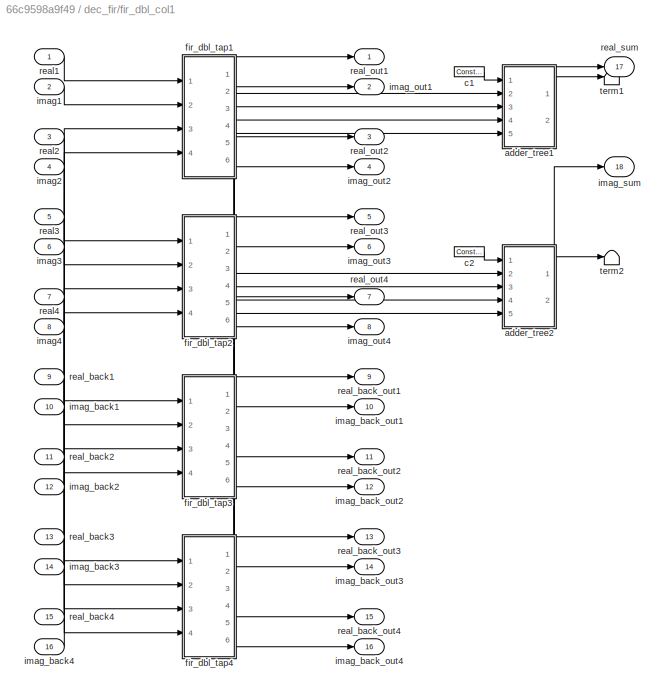
BLOCK [SubSystem] dec_fir/fir_dbl_col1
  AncestorBlock = casper_library_downconverter/fir_dbl_col
  FunctionWithSeparateData = off
  MaskHideContents = off
  MinAlgLoopOccurrences = off
  Opaque = off
  Ports = [16, 18]
  PropExecContextOutsideSubsystem = off
  RTWSystemCode = Auto
  RequestExecContextInheritance = off
  UserDataPersistent = on
BLOCK [SubSystem] dec_fir/fir_dbl_col1/adder_tree1
  AncestorBlock = casper_library_misc/adder_tree
  AttributesFormatString = latency 2
  FunctionWithSeparateData = off
  MaskHideContents = off
  MinAlgLoopOccurrences = off
  Opaque = off
  Ports = [5, 2]
  PropExecContextOutsideSubsystem = off
  RTWSystemCode = Auto
  RequestExecContextInheritance = off
  UserDataPersistent = on
BLOCK [Reference] dec_fir/fir_dbl_col1/adder_tree1/addr1  REF=xbsIndex_r4/AddSub
  Ports = [2, 1]
  SourceBlock = xbsIndex_r4/AddSub
  SourceType = Xilinx Adder/Subtracter Block
  arith_type = Unsigned
  bin_pt = 14
  block_type = addsub
  block_version = 11.4
  dbl_ovrd = off
  en = off
  has_advanced_control = 0
  hw_selection = DSP48
  latency = 1
  mode = Addition
  n_bits = 16
  overflow = Wrap
  pipelined = on
  precision = Full
  quantization = Truncate
  sg_icon_stat = 40,60,2,1,white,blue,0,e85d8a90,right,,[ ],[ ]
  sg_mask_display = fprintf('','COMMENT: begin icon graphics');\npatch([0 40 40 0 0 ],[0 0 60 60 0 ],[0.77 0.82 0.91 ]);\nplot([0 40 40 0 0 ],[0 0 60 60 0 ]);\npatch([8.875 16.1 21.1 26.1 31.1 21.1 13.875 8.875 ],[35.55 35.55 40.55 35.55 40.55 40.55 40.55 35.55 ],[1 1 1 ]);\npatch([13.875 21.1 16.1 8.875 13.875 ],[30.55 30.55 35.55 35.55 30.55 ],[0.931 0.946 0.973 ]);\npatch([8.875 16.1 21.1 13.875 8.875 ],[25.55 25.55 30...<+525ch>  <repeated x14 — deduplicated; at blocks: addr1, addr2, addr3>
  sggui_pos = 22,98,419,344
  use_behavioral_HDL = on
  use_carryin = off
  use_carryout = off
  use_rpm = on
  xl_area = [0,0,0,0,0,0,0]
  xl_use_area = off
BLOCK [Reference] dec_fir/fir_dbl_col1/adder_tree1/addr2  REF=xbsIndex_r4/AddSub
  Ports = [2, 1]
  SourceBlock = xbsIndex_r4/AddSub
  SourceType = Xilinx Adder/Subtracter Block
  arith_type = Unsigned
  bin_pt = 14
  block_type = addsub
  dbl_ovrd = off
  en = off
  has_advanced_control = 0
  hw_selection = DSP48
  latency = 1
  mode = Addition
  n_bits = 16
  overflow = Wrap
  pipelined = on
  precision = Full
  quantization = Truncate
  sg_icon_stat = 40,60,2,1,white,blue,0,e85d8a90,right,,[ ],[ ]
  sggui_pos = -1,-1,-1,-1
  use_behavioral_HDL = on
  use_carryin = off
  use_carryout = off
  use_rpm = on
  xl_area = [0,0,0,0,0,0,0]
  xl_use_area = off
BLOCK [Reference] dec_fir/fir_dbl_col1/adder_tree1/addr3  REF=xbsIndex_r4/AddSub
  Ports = [2, 1]
  SourceBlock = xbsIndex_r4/AddSub
  SourceType = Xilinx Adder/Subtracter Block
  arith_type = Unsigned
  bin_pt = 14
  block_type = addsub
  dbl_ovrd = off
  en = off
  has_advanced_control = 0
  hw_selection = DSP48
  latency = 1
  mode = Addition
  n_bits = 16
  overflow = Wrap
  pipelined = on
  precision = Full
  quantization = Truncate
  sg_icon_stat = 40,60,2,1,white,blue,0,e85d8a90,right,,[ ],[ ]
  sggui_pos = -1,-1,-1,-1
  use_behavioral_HDL = off
  use_carryin = off
  use_carryout = off
  use_rpm = on
  xl_area = [0,0,0,0,0,0,0]
  xl_use_area = off
BLOCK [Inport] dec_fir/fir_dbl_col1/adder_tree1/din1
  IconDisplay = Port number
  Port = 2
BLOCK [Inport] dec_fir/fir_dbl_col1/adder_tree1/din2
  IconDisplay = Port number
  Port = 3
BLOCK [Inport] dec_fir/fir_dbl_col1/adder_tree1/din3
  IconDisplay = Port number
  Port = 4
BLOCK [Inport] dec_fir/fir_dbl_col1/adder_tree1/din4
  IconDisplay = Port number
  Port = 5
BLOCK [Outport] dec_fir/fir_dbl_col1/adder_tree1/dout
  IconDisplay = Port number
  Port = 2
BLOCK [Inport] dec_fir/fir_dbl_col1/adder_tree1/sync
  IconDisplay = Port number
BLOCK [Reference] dec_fir/fir_dbl_col1/adder_tree1/sync_delay  REF=xbsIndex_r4/Delay
  Ports = [1, 1]
  SourceBlock = xbsIndex_r4/Delay
  SourceType = Xilinx Delay Block
  block_type = delay
  block_version = 11.4
  dbl_ovrd = off
  en = off
  has_advanced_control = 0
  infoedit = Hardware notes: A delay line is a chain, each link of which is an SRL16 followed by a flip-flop.
  infoeditControl = Selection of Reset will increase slice count due to use of real FFs and instead of SRLs
  latency = 2
  reg_retiming = on
  rst = off
  sg_icon_stat = 30,30,1,1,white,blue,0,85ce9542,right,,[ ],[ ]
  sggui_pos = 21,71,419,315
  xl_area = [0,0,0,0,0,0,0]
  xl_use_area = off
BLOCK [Outport] dec_fir/fir_dbl_col1/adder_tree1/sync_out
  IconDisplay = Port number
BLOCK [SubSystem] dec_fir/fir_dbl_col1/adder_tree2
  AncestorBlock = casper_library_misc/adder_tree
  AttributesFormatString = latency 2
  FunctionWithSeparateData = off
  MaskHideContents = off
  MinAlgLoopOccurrences = off
  Opaque = off
  Ports = [5, 2]
  PropExecContextOutsideSubsystem = off
  RTWSystemCode = Auto
  RequestExecContextInheritance = off
  UserDataPersistent = on
BLOCK [Reference] dec_fir/fir_dbl_col1/adder_tree2/addr1  REF=xbsIndex_r4/AddSub
  Ports = [2, 1]
  SourceBlock = xbsIndex_r4/AddSub
  SourceType = Xilinx Adder/Subtracter Block
  arith_type = Unsigned
  bin_pt = 14
  block_type = addsub
  block_version = 11.4
  dbl_ovrd = off
  en = off
  has_advanced_control = 0
  hw_selection = DSP48
  latency = 1
  mode = Addition
  n_bits = 16
  overflow = Wrap
  pipelined = on
  precision = Full
  quantization = Truncate
  sg_icon_stat = 40,60,2,1,white,blue,0,e85d8a90,right,,[ ],[ ]
  sggui_pos = 22,98,419,344
  use_behavioral_HDL = on
  use_carryin = off
  use_carryout = off
  use_rpm = on
  xl_area = [0,0,0,0,0,0,0]
  xl_use_area = off
BLOCK [Reference] dec_fir/fir_dbl_col1/adder_tree2/addr2  REF=xbsIndex_r4/AddSub
  Ports = [2, 1]
  SourceBlock = xbsIndex_r4/AddSub
  SourceType = Xilinx Adder/Subtracter Block
  arith_type = Unsigned
  bin_pt = 14
  block_type = addsub
  dbl_ovrd = off
  en = off
  has_advanced_control = 0
  hw_selection = DSP48
  latency = 1
  mode = Addition
  n_bits = 16
  overflow = Wrap
  pipelined = on
  precision = Full
  quantization = Truncate
  sg_icon_stat = 40,60,2,1,white,blue,0,e85d8a90,right,,[ ],[ ]
  sggui_pos = -1,-1,-1,-1
  use_behavioral_HDL = on
  use_carryin = off
  use_carryout = off
  use_rpm = on
  xl_area = [0,0,0,0,0,0,0]
  xl_use_area = off
BLOCK [Reference] dec_fir/fir_dbl_col1/adder_tree2/addr3  REF=xbsIndex_r4/AddSub
  Ports = [2, 1]
  SourceBlock = xbsIndex_r4/AddSub
  SourceType = Xilinx Adder/Subtracter Block
  arith_type = Unsigned
  bin_pt = 14
  block_type = addsub
  dbl_ovrd = off
  en = off
  has_advanced_control = 0
  hw_selection = DSP48
  latency = 1
  mode = Addition
  n_bits = 16
  overflow = Wrap
  pipelined = on
  precision = Full
  quantization = Truncate
  sg_icon_stat = 40,60,2,1,white,blue,0,e85d8a90,right,,[ ],[ ]
  sggui_pos = -1,-1,-1,-1
  use_behavioral_HDL = off
  use_carryin = off
  use_carryout = off
  use_rpm = on
  xl_area = [0,0,0,0,0,0,0]
  xl_use_area = off
BLOCK [Inport] dec_fir/fir_dbl_col1/adder_tree2/din1
  IconDisplay = Port number
  Port = 2
BLOCK [Inport] dec_fir/fir_dbl_col1/adder_tree2/din2
  IconDisplay = Port number
  Port = 3
BLOCK [Inport] dec_fir/fir_dbl_col1/adder_tree2/din3
  IconDisplay = Port number
  Port = 4
BLOCK [Inport] dec_fir/fir_dbl_col1/adder_tree2/din4
  IconDisplay = Port number
  Port = 5
BLOCK [Outport] dec_fir/fir_dbl_col1/adder_tree2/dout
  IconDisplay = Port number
  Port = 2
BLOCK [Inport] dec_fir/fir_dbl_col1/adder_tree2/sync
  IconDisplay = Port number
BLOCK [Reference] dec_fir/fir_dbl_col1/adder_tree2/sync_delay  REF=xbsIndex_r4/Delay
  Ports = [1, 1]
  SourceBlock = xbsIndex_r4/Delay
  SourceType = Xilinx Delay Block
  block_type = delay
  block_version = 11.4
  dbl_ovrd = off
  en = off
  has_advanced_control = 0
  infoedit = Hardware notes: A delay line is a chain, each link of which is an SRL16 followed by a flip-flop.
  infoeditControl = Selection of Reset will increase slice count due to use of real FFs and instead of SRLs
  latency = 2
  reg_retiming = on
  rst = off
  sg_icon_stat = 30,30,1,1,white,blue,0,85ce9542,right,,[ ],[ ]
  sggui_pos = 21,71,419,315
  xl_area = [0,0,0,0,0,0,0]
  xl_use_area = off
BLOCK [Outport] dec_fir/fir_dbl_col1/adder_tree2/sync_out
  IconDisplay = Port number
BLOCK [Reference] dec_fir/fir_dbl_col1/c1  REF=xbsIndex_r4/Constant
  Ports = [0, 1]
  SourceBlock = xbsIndex_r4/Constant
  SourceType = Xilinx Constant Block Block
  arith_type = Signed (2's comp)
  bin_pt = 14
  block_type = constant
  carry = CIN
  const = 1
  dbl_ovrd = off
  dsp48_infoedit = The use of this block for DSP48 instructions is deprecated.  Please use the Opmode block.
  equ = P=C
  exp_width = 8
  explicit_period = on
  frac_width = 24
  gui_display_data_type = Fixed-point
  has_advanced_control = 0
  inp1 = P
  inp2 = PCIN>>17
  n_bits = 16
  opr = +
  opselect = C
  period = 1
  preci_type = Single
  sg_icon_stat = 30,10,0,1,white,blue,0,1c72b5be,right,,[ ],[ ]
  sg_mask_display = fprintf('','COMMENT: begin icon graphics');\npatch([0 30 30 0 0 ],[0 0 10 10 0 ],[0.77 0.82 0.91 ]);\nplot([0 30 30 0 0 ],[0 0 10 10 0 ]);\npatch([12.775 14.22 15.22 16.22 17.22 15.22 13.775 12.775 ],[6.11 6.11 7.11 6.11 7.11 7.11 7.11 6.11 ],[1 1 1 ]);\npatch([13.775 15.22 14.22 12.775 13.775 ],[5.11 5.11 6.11 6.11 5.11 ],[0.931 0.946 0.973 ]);\npatch([12.775 14.22 15.22 13.775 12.775 ],[4.11 4.11 5.1...<+302ch>  <repeated x4 — deduplicated; at blocks: c1, c2>
  sggui_pos = -1,-1,-1,-1
BLOCK [Reference] dec_fir/fir_dbl_col1/c2  REF=xbsIndex_r4/Constant
  Ports = [0, 1]
  SourceBlock = xbsIndex_r4/Constant
  SourceType = Xilinx Constant Block Block
  arith_type = Signed (2's comp)
  bin_pt = 14
  block_type = constant
  carry = CIN
  const = 1
  dbl_ovrd = off
  dsp48_infoedit = The use of this block for DSP48 instructions is deprecated.  Please use the Opmode block.
  equ = P=C
  exp_width = 8
  explicit_period = on
  frac_width = 24
  gui_display_data_type = Fixed-point
  has_advanced_control = 0
  inp1 = P
  inp2 = PCIN>>17
  n_bits = 16
  opr = +
  opselect = C
  period = 1
  preci_type = Single
  sg_icon_stat = 30,10,0,1,white,blue,0,1c72b5be,right,,[ ],[ ]
  sggui_pos = -1,-1,-1,-1
BLOCK [SubSystem] dec_fir/fir_dbl_col1/fir_dbl_tap1
  AncestorBlock = casper_library_downconverter/fir_dbl_tap
  FunctionWithSeparateData = off
  MaskHideContents = off
  MinAlgLoopOccurrences = off
  Opaque = off
  Ports = [4, 6]
  PropExecContextOutsideSubsystem = off
  RTWSystemCode = Auto
  RequestExecContextInheritance = off
  UserDataPersistent = on
BLOCK [Reference] dec_fir/fir_dbl_col1/fir_dbl_tap1/AddSub0  REF=xbsIndex_r4/AddSub
  Ports = [2, 1]
  SourceBlock = xbsIndex_r4/AddSub
  SourceType = Xilinx Adder/Subtracter Block
  arith_type = Signed  (2's comp)
  bin_pt = 16
  block_type = addsub
  dbl_ovrd = off
  en = off
  has_advanced_control = 0
  hw_selection = Fabric
  latency = add_latency
  mode = Addition
  n_bits = 18
  overflow = Wrap
  pipelined = off
  precision = Full
  quantization = Truncate
  sg_icon_stat = 50,51,2,1,white,blue,0,e85d8a90,right,,[ ],[ ]
  sg_mask_display = fprintf('','COMMENT: begin icon graphics');\npatch([0 50 50 0 0 ],[0 0 51 51 0 ],[0.77 0.82 0.91 ]);\nplot([0 50 50 0 0 ],[0 0 51 51 0 ]);\npatch([9.425 19.54 26.54 33.54 40.54 26.54 16.425 9.425 ],[32.77 32.77 39.77 32.77 39.77 39.77 39.77 32.77 ],[1 1 1 ]);\npatch([16.425 26.54 19.54 9.425 16.425 ],[25.77 25.77 32.77 32.77 25.77 ],[0.931 0.946 0.973 ]);\npatch([9.425 19.54 26.54 16.425 9.425 ],[18.77...<+538ch>  <repeated x16 — deduplicated; at blocks: AddSub0, AddSub1>
  sggui_pos = -1,-1,-1,-1
  use_behavioral_HDL = on
  use_carryin = off
  use_carryout = off
  use_rpm = on
  xl_area = [0,0,0,0,0,0,0]
  xl_use_area = off
BLOCK [Reference] dec_fir/fir_dbl_col1/fir_dbl_tap1/AddSub1  REF=xbsIndex_r4/AddSub
  Ports = [2, 1]
  SourceBlock = xbsIndex_r4/AddSub
  SourceType = Xilinx Adder/Subtracter Block
  arith_type = Signed  (2's comp)
  bin_pt = 16
  block_type = addsub
  dbl_ovrd = off
  en = off
  has_advanced_control = 0
  hw_selection = Fabric
  latency = add_latency
  mode = Addition
  n_bits = 18
  overflow = Wrap
  pipelined = off
  precision = Full
  quantization = Truncate
  sg_icon_stat = 50,51,2,1,white,blue,0,e85d8a90,right,,[ ],[ ]
  sggui_pos = -1,-1,-1,-1
  use_behavioral_HDL = on
  use_carryin = off
  use_carryout = off
  use_rpm = on
  xl_area = [0,0,0,0,0,0,0]
  xl_use_area = off
BLOCK [Reference] dec_fir/fir_dbl_col1/fir_dbl_tap1/Mult0  REF=xbsIndex_r4/Mult
  Ports = [2, 1]
  SourceBlock = xbsIndex_r4/Mult
  SourceType = Xilinx Multiplier Block
  arith_type = Signed  (2's comp)
  bin_pt = 17
  block_type = mult
  dbl_ovrd = off
  en = off
  has_advanced_control = 0
  infoedit = Hardware notes: To check for the optimum internal pipeline stages of the dedicated multiplier you must select 'Test for optimum pipelining'.<br><br>Optimization Goal: For implementation into device fabric (LUTs), the Speed or Area optimization will take effect only if it's supported by IP for the particular device family. Otherwise, the results will be identical regardless of the selection.  <repeated x16 — deduplicated; at blocks: Mult0, Mult1>
  latency = mult_latency
  n_bits = 18
  opt = Speed
  optimum_pipeline = off
  overflow = Wrap
  pipeline = on
  placement_style = Rectangular shape
  precision = Full
  quantization = Truncate
  sg_icon_stat = 50,51,2,1,white,blue,0,2fbe4d8a,right,,[ ],[ ]
  sg_mask_display = fprintf('','COMMENT: begin icon graphics');\npatch([0 50 50 0 0 ],[0 0 51 51 0 ],[0.77 0.82 0.91 ]);\nplot([0 50 50 0 0 ],[0 0 51 51 0 ]);\npatch([9.425 19.54 26.54 33.54 40.54 26.54 16.425 9.425 ],[32.77 32.77 39.77 32.77 39.77 39.77 39.77 32.77 ],[1 1 1 ]);\npatch([16.425 26.54 19.54 9.425 16.425 ],[25.77 25.77 32.77 32.77 25.77 ],[0.931 0.946 0.973 ]);\npatch([9.425 19.54 26.54 16.425 9.425 ],[18.77...<+516ch>  <repeated x16 — deduplicated; at blocks: Mult0, Mult1>
  sggui_pos = -1,-1,-1,-1
  use_behavioral_HDL = on
  use_embedded = on
  use_rpm = off
  xl_area = [0,0,0,0,0,0,0]
  xl_use_area = off
BLOCK [Reference] dec_fir/fir_dbl_col1/fir_dbl_tap1/Mult1  REF=xbsIndex_r4/Mult
  Ports = [2, 1]
  SourceBlock = xbsIndex_r4/Mult
  SourceType = Xilinx Multiplier Block
  arith_type = Signed  (2's comp)
  bin_pt = 17
  block_type = mult
  dbl_ovrd = off
  en = off
  has_advanced_control = 0
  latency = mult_latency
  n_bits = 18
  opt = Speed
  optimum_pipeline = off
  overflow = Wrap
  pipeline = on
  placement_style = Rectangular shape
  precision = Full
  quantization = Truncate
  sg_icon_stat = 50,51,2,1,white,blue,0,2fbe4d8a,right,,[ ],[ ]
  sggui_pos = -1,-1,-1,-1
  use_behavioral_HDL = on
  use_embedded = on
  use_rpm = off
  xl_area = [0,0,0,0,0,0,0]
  xl_use_area = off
BLOCK [Reference] dec_fir/fir_dbl_col1/fir_dbl_tap1/Register0  REF=xbsIndex_r4/Register
  Ports = [1, 1]
  SourceBlock = xbsIndex_r4/Register
  SourceType = Xilinx Register Block
  block_type = register
  dbl_ovrd = off
  en = off
  has_advanced_control = 0
  init = 0
  rst = off
  sg_icon_stat = 45,48,1,1,white,blue,0,c80657c5,right,,[ ],[ ]
  sg_mask_display = fprintf('','COMMENT: begin icon graphics');\npatch([0 45 45 0 0 ],[0 0 48 48 0 ],[0.77 0.82 0.91 ]);\nplot([0 45 45 0 0 ],[0 0 48 48 0 ]);\npatch([8.65 17.32 23.32 29.32 35.32 23.32 14.65 8.65 ],[30.66 30.66 36.66 30.66 36.66 36.66 36.66 30.66 ],[1 1 1 ]);\npatch([14.65 23.32 17.32 8.65 14.65 ],[24.66 24.66 30.66 30.66 24.66 ],[0.931 0.946 0.973 ]);\npatch([8.65 17.32 23.32 14.65 8.65 ],[18.66 18.66 24...<+397ch>  <repeated x32 — deduplicated; at blocks: Register0, Register1, Register2, Register3>
  sggui_pos = -1,-1,-1,-1
  xl_area = [0,0,0,0,0,0,0]
  xl_use_area = off
BLOCK [Reference] dec_fir/fir_dbl_col1/fir_dbl_tap1/Register1  REF=xbsIndex_r4/Register
  Ports = [1, 1]
  SourceBlock = xbsIndex_r4/Register
  SourceType = Xilinx Register Block
  block_type = register
  dbl_ovrd = off
  en = off
  has_advanced_control = 0
  init = 0
  rst = off
  sg_icon_stat = 45,48,1,1,white,blue,0,c80657c5,right,,[ ],[ ]
  sggui_pos = -1,-1,-1,-1
  xl_area = [0,0,0,0,0,0,0]
  xl_use_area = off
BLOCK [Reference] dec_fir/fir_dbl_col1/fir_dbl_tap1/Register2  REF=xbsIndex_r4/Register
  Ports = [1, 1]
  SourceBlock = xbsIndex_r4/Register
  SourceType = Xilinx Register Block
  block_type = register
  dbl_ovrd = off
  en = off
  has_advanced_control = 0
  init = 0
  rst = off
  sg_icon_stat = 45,48,1,1,white,blue,0,c80657c5,right,,[ ],[ ]
  sggui_pos = -1,-1,-1,-1
  xl_area = [0,0,0,0,0,0,0]
  xl_use_area = off
BLOCK [Reference] dec_fir/fir_dbl_col1/fir_dbl_tap1/Register3  REF=xbsIndex_r4/Register
  Ports = [1, 1]
  SourceBlock = xbsIndex_r4/Register
  SourceType = Xilinx Register Block
  block_type = register
  dbl_ovrd = off
  en = off
  has_advanced_control = 0
  init = 0
  rst = off
  sg_icon_stat = 45,48,1,1,white,blue,0,c80657c5,right,,[ ],[ ]
  sggui_pos = -1,-1,-1,-1
  xl_area = [0,0,0,0,0,0,0]
  xl_use_area = off
BLOCK [Inport] dec_fir/fir_dbl_col1/fir_dbl_tap1/a
  IconDisplay = Port number
BLOCK [Outport] dec_fir/fir_dbl_col1/fir_dbl_tap1/a_out
  IconDisplay = Port number
BLOCK [Inport] dec_fir/fir_dbl_col1/fir_dbl_tap1/b
  IconDisplay = Port number
  Port = 2
BLOCK [Outport] dec_fir/fir_dbl_col1/fir_dbl_tap1/b_out
  IconDisplay = Port number
  Port = 2
BLOCK [Inport] dec_fir/fir_dbl_col1/fir_dbl_tap1/c
  IconDisplay = Port number
  Port = 3
BLOCK [Outport] dec_fir/fir_dbl_col1/fir_dbl_tap1/c_out
  IconDisplay = Port number
  Port = 3
BLOCK [Reference] dec_fir/fir_dbl_col1/fir_dbl_tap1/coefficient  REF=xbsIndex_r4/Constant
  Ports = [0, 1]
  SourceBlock = xbsIndex_r4/Constant
  SourceType = Xilinx Constant Block Block
  arith_type = Signed (2's comp)
  bin_pt = coeff_bin_pt
  block_type = constant
  carry = CIN
  const = factor
  dbl_ovrd = off
  dsp48_infoedit = The use of this block for DSP48 instructions is deprecated.  Please use the Opmode block.
  equ = P=C
  exp_width = 8
  explicit_period = on
  frac_width = 24
  gui_display_data_type = Fixed-point
  has_advanced_control = 0
  inp1 = P
  inp2 = PCIN>>17
  n_bits = coeff_bit_width
  opr = +
  opselect = C
  period = 1
  preci_type = Single
  sg_icon_stat = 120,32,0,1,white,blue,0,df07b41d,right,,[ ],[ ]
  sg_mask_display = fprintf('','COMMENT: begin icon graphics');\npatch([0 120 120 0 0 ],[0 0 32 32 0 ],[0.77 0.82 0.91 ]);\nplot([0 120 120 0 0 ],[0 0 32 32 0 ]);\npatch([51.1 56.88 60.88 64.88 68.88 60.88 55.1 51.1 ],[20.44 20.44 24.44 20.44 24.44 24.44 24.44 20.44 ],[1 1 1 ]);\npatch([55.1 60.88 56.88 51.1 55.1 ],[16.44 16.44 20.44 20.44 16.44 ],[0.931 0.946 0.973 ]);\npatch([51.1 56.88 60.88 55.1 51.1 ],[12.44 12.44 16...<+322ch>  <repeated x8 — deduplicated; at blocks: coefficient>
  sggui_pos = -1,-1,-1,-1
BLOCK [Inport] dec_fir/fir_dbl_col1/fir_dbl_tap1/d
  IconDisplay = Port number
  Port = 4
BLOCK [Outport] dec_fir/fir_dbl_col1/fir_dbl_tap1/d_out
  IconDisplay = Port number
  Port = 4
BLOCK [Outport] dec_fir/fir_dbl_col1/fir_dbl_tap1/imag
  IconDisplay = Port number
  Port = 6
BLOCK [Outport] dec_fir/fir_dbl_col1/fir_dbl_tap1/real
  IconDisplay = Port number
  Port = 5
BLOCK [SubSystem] dec_fir/fir_dbl_col1/fir_dbl_tap2
  AncestorBlock = casper_library_downconverter/fir_dbl_tap
  FunctionWithSeparateData = off
  MaskHideContents = off
  MinAlgLoopOccurrences = off
  Opaque = off
  Ports = [4, 6]
  PropExecContextOutsideSubsystem = off
  RTWSystemCode = Auto
  RequestExecContextInheritance = off
  UserDataPersistent = on
BLOCK [Reference] dec_fir/fir_dbl_col1/fir_dbl_tap2/AddSub0  REF=xbsIndex_r4/AddSub
  Ports = [2, 1]
  SourceBlock = xbsIndex_r4/AddSub
  SourceType = Xilinx Adder/Subtracter Block
  arith_type = Signed  (2's comp)
  bin_pt = 16
  block_type = addsub
  dbl_ovrd = off
  en = off
  has_advanced_control = 0
  hw_selection = Fabric
  latency = add_latency
  mode = Addition
  n_bits = 18
  overflow = Wrap
  pipelined = off
  precision = Full
  quantization = Truncate
  sg_icon_stat = 50,51,2,1,white,blue,0,e85d8a90,right,,[ ],[ ]
  sggui_pos = -1,-1,-1,-1
  use_behavioral_HDL = on
  use_carryin = off
  use_carryout = off
  use_rpm = on
  xl_area = [0,0,0,0,0,0,0]
  xl_use_area = off
BLOCK [Reference] dec_fir/fir_dbl_col1/fir_dbl_tap2/AddSub1  REF=xbsIndex_r4/AddSub
  Ports = [2, 1]
  SourceBlock = xbsIndex_r4/AddSub
  SourceType = Xilinx Adder/Subtracter Block
  arith_type = Signed  (2's comp)
  bin_pt = 16
  block_type = addsub
  dbl_ovrd = off
  en = off
  has_advanced_control = 0
  hw_selection = Fabric
  latency = add_latency
  mode = Addition
  n_bits = 18
  overflow = Wrap
  pipelined = off
  precision = Full
  quantization = Truncate
  sg_icon_stat = 50,51,2,1,white,blue,0,e85d8a90,right,,[ ],[ ]
  sggui_pos = -1,-1,-1,-1
  use_behavioral_HDL = on
  use_carryin = off
  use_carryout = off
  use_rpm = on
  xl_area = [0,0,0,0,0,0,0]
  xl_use_area = off
BLOCK [Reference] dec_fir/fir_dbl_col1/fir_dbl_tap2/Mult0  REF=xbsIndex_r4/Mult
  Ports = [2, 1]
  SourceBlock = xbsIndex_r4/Mult
  SourceType = Xilinx Multiplier Block
  arith_type = Signed  (2's comp)
  bin_pt = 17
  block_type = mult
  dbl_ovrd = off
  en = off
  has_advanced_control = 0
  latency = mult_latency
  n_bits = 18
  opt = Speed
  optimum_pipeline = off
  overflow = Wrap
  pipeline = on
  placement_style = Rectangular shape
  precision = Full
  quantization = Truncate
  sg_icon_stat = 50,51,2,1,white,blue,0,2fbe4d8a,right,,[ ],[ ]
  sggui_pos = -1,-1,-1,-1
  use_behavioral_HDL = on
  use_embedded = on
  use_rpm = off
  xl_area = [0,0,0,0,0,0,0]
  xl_use_area = off
BLOCK [Reference] dec_fir/fir_dbl_col1/fir_dbl_tap2/Mult1  REF=xbsIndex_r4/Mult
  Ports = [2, 1]
  SourceBlock = xbsIndex_r4/Mult
  SourceType = Xilinx Multiplier Block
  arith_type = Signed  (2's comp)
  bin_pt = 17
  block_type = mult
  dbl_ovrd = off
  en = off
  has_advanced_control = 0
  latency = mult_latency
  n_bits = 18
  opt = Speed
  optimum_pipeline = off
  overflow = Wrap
  pipeline = on
  placement_style = Rectangular shape
  precision = Full
  quantization = Truncate
  sg_icon_stat = 50,51,2,1,white,blue,0,2fbe4d8a,right,,[ ],[ ]
  sggui_pos = -1,-1,-1,-1
  use_behavioral_HDL = on
  use_embedded = on
  use_rpm = off
  xl_area = [0,0,0,0,0,0,0]
  xl_use_area = off
BLOCK [Reference] dec_fir/fir_dbl_col1/fir_dbl_tap2/Register0  REF=xbsIndex_r4/Register
  Ports = [1, 1]
  SourceBlock = xbsIndex_r4/Register
  SourceType = Xilinx Register Block
  block_type = register
  dbl_ovrd = off
  en = off
  has_advanced_control = 0
  init = 0
  rst = off
  sg_icon_stat = 45,48,1,1,white,blue,0,c80657c5,right,,[ ],[ ]
  sggui_pos = -1,-1,-1,-1
  xl_area = [0,0,0,0,0,0,0]
  xl_use_area = off
BLOCK [Reference] dec_fir/fir_dbl_col1/fir_dbl_tap2/Register1  REF=xbsIndex_r4/Register
  Ports = [1, 1]
  SourceBlock = xbsIndex_r4/Register
  SourceType = Xilinx Register Block
  block_type = register
  dbl_ovrd = off
  en = off
  has_advanced_control = 0
  init = 0
  rst = off
  sg_icon_stat = 45,48,1,1,white,blue,0,c80657c5,right,,[ ],[ ]
  sggui_pos = -1,-1,-1,-1
  xl_area = [0,0,0,0,0,0,0]
  xl_use_area = off
BLOCK [Reference] dec_fir/fir_dbl_col1/fir_dbl_tap2/Register2  REF=xbsIndex_r4/Register
  Ports = [1, 1]
  SourceBlock = xbsIndex_r4/Register
  SourceType = Xilinx Register Block
  block_type = register
  dbl_ovrd = off
  en = off
  has_advanced_control = 0
  init = 0
  rst = off
  sg_icon_stat = 45,48,1,1,white,blue,0,c80657c5,right,,[ ],[ ]
  sggui_pos = -1,-1,-1,-1
  xl_area = [0,0,0,0,0,0,0]
  xl_use_area = off
BLOCK [Reference] dec_fir/fir_dbl_col1/fir_dbl_tap2/Register3  REF=xbsIndex_r4/Register
  Ports = [1, 1]
  SourceBlock = xbsIndex_r4/Register
  SourceType = Xilinx Register Block
  block_type = register
  dbl_ovrd = off
  en = off
  has_advanced_control = 0
  init = 0
  rst = off
  sg_icon_stat = 45,48,1,1,white,blue,0,c80657c5,right,,[ ],[ ]
  sggui_pos = -1,-1,-1,-1
  xl_area = [0,0,0,0,0,0,0]
  xl_use_area = off
BLOCK [Inport] dec_fir/fir_dbl_col1/fir_dbl_tap2/a
  IconDisplay = Port number
BLOCK [Outport] dec_fir/fir_dbl_col1/fir_dbl_tap2/a_out
  IconDisplay = Port number
BLOCK [Inport] dec_fir/fir_dbl_col1/fir_dbl_tap2/b
  IconDisplay = Port number
  Port = 2
BLOCK [Outport] dec_fir/fir_dbl_col1/fir_dbl_tap2/b_out
  IconDisplay = Port number
  Port = 2
BLOCK [Inport] dec_fir/fir_dbl_col1/fir_dbl_tap2/c
  IconDisplay = Port number
  Port = 3
BLOCK [Outport] dec_fir/fir_dbl_col1/fir_dbl_tap2/c_out
  IconDisplay = Port number
  Port = 3
BLOCK [Reference] dec_fir/fir_dbl_col1/fir_dbl_tap2/coefficient  REF=xbsIndex_r4/Constant
  Ports = [0, 1]
  SourceBlock = xbsIndex_r4/Constant
  SourceType = Xilinx Constant Block Block
  arith_type = Signed (2's comp)
  bin_pt = coeff_bin_pt
  block_type = constant
  carry = CIN
  const = factor
  dbl_ovrd = off
  dsp48_infoedit = The use of this block for DSP48 instructions is deprecated.  Please use the Opmode block.
  equ = P=C
  exp_width = 8
  explicit_period = on
  frac_width = 24
  gui_display_data_type = Fixed-point
  has_advanced_control = 0
  inp1 = P
  inp2 = PCIN>>17
  n_bits = coeff_bit_width
  opr = +
  opselect = C
  period = 1
  preci_type = Single
  sg_icon_stat = 120,32,0,1,white,blue,0,86ff8023,right,,[ ],[ ]
  sggui_pos = -1,-1,-1,-1
BLOCK [Inport] dec_fir/fir_dbl_col1/fir_dbl_tap2/d
  IconDisplay = Port number
  Port = 4
BLOCK [Outport] dec_fir/fir_dbl_col1/fir_dbl_tap2/d_out
  IconDisplay = Port number
  Port = 4
BLOCK [Outport] dec_fir/fir_dbl_col1/fir_dbl_tap2/imag
  IconDisplay = Port number
  Port = 6
BLOCK [Outport] dec_fir/fir_dbl_col1/fir_dbl_tap2/real
  IconDisplay = Port number
  Port = 5
BLOCK [SubSystem] dec_fir/fir_dbl_col1/fir_dbl_tap3
  AncestorBlock = casper_library_downconverter/fir_dbl_tap
  FunctionWithSeparateData = off
  MaskHideContents = off
  MinAlgLoopOccurrences = off
  Opaque = off
  Ports = [4, 6]
  PropExecContextOutsideSubsystem = off
  RTWSystemCode = Auto
  RequestExecContextInheritance = off
  UserDataPersistent = on
BLOCK [Reference] dec_fir/fir_dbl_col1/fir_dbl_tap3/AddSub0  REF=xbsIndex_r4/AddSub
  Ports = [2, 1]
  SourceBlock = xbsIndex_r4/AddSub
  SourceType = Xilinx Adder/Subtracter Block
  arith_type = Signed  (2's comp)
  bin_pt = 16
  block_type = addsub
  dbl_ovrd = off
  en = off
  has_advanced_control = 0
  hw_selection = Fabric
  latency = add_latency
  mode = Addition
  n_bits = 18
  overflow = Wrap
  pipelined = off
  precision = Full
  quantization = Truncate
  sg_icon_stat = 50,51,2,1,white,blue,0,e85d8a90,right,,[ ],[ ]
  sggui_pos = -1,-1,-1,-1
  use_behavioral_HDL = on
  use_carryin = off
  use_carryout = off
  use_rpm = on
  xl_area = [0,0,0,0,0,0,0]
  xl_use_area = off
BLOCK [Reference] dec_fir/fir_dbl_col1/fir_dbl_tap3/AddSub1  REF=xbsIndex_r4/AddSub
  Ports = [2, 1]
  SourceBlock = xbsIndex_r4/AddSub
  SourceType = Xilinx Adder/Subtracter Block
  arith_type = Signed  (2's comp)
  bin_pt = 16
  block_type = addsub
  dbl_ovrd = off
  en = off
  has_advanced_control = 0
  hw_selection = Fabric
  latency = add_latency
  mode = Addition
  n_bits = 18
  overflow = Wrap
  pipelined = off
  precision = Full
  quantization = Truncate
  sg_icon_stat = 50,51,2,1,white,blue,0,e85d8a90,right,,[ ],[ ]
  sggui_pos = -1,-1,-1,-1
  use_behavioral_HDL = on
  use_carryin = off
  use_carryout = off
  use_rpm = on
  xl_area = [0,0,0,0,0,0,0]
  xl_use_area = off
BLOCK [Reference] dec_fir/fir_dbl_col1/fir_dbl_tap3/Mult0  REF=xbsIndex_r4/Mult
  Ports = [2, 1]
  SourceBlock = xbsIndex_r4/Mult
  SourceType = Xilinx Multiplier Block
  arith_type = Signed  (2's comp)
  bin_pt = 17
  block_type = mult
  dbl_ovrd = off
  en = off
  has_advanced_control = 0
  latency = mult_latency
  n_bits = 18
  opt = Speed
  optimum_pipeline = off
  overflow = Wrap
  pipeline = on
  placement_style = Rectangular shape
  precision = Full
  quantization = Truncate
  sg_icon_stat = 50,51,2,1,white,blue,0,2fbe4d8a,right,,[ ],[ ]
  sggui_pos = -1,-1,-1,-1
  use_behavioral_HDL = on
  use_embedded = on
  use_rpm = off
  xl_area = [0,0,0,0,0,0,0]
  xl_use_area = off
BLOCK [Reference] dec_fir/fir_dbl_col1/fir_dbl_tap3/Mult1  REF=xbsIndex_r4/Mult
  Ports = [2, 1]
  SourceBlock = xbsIndex_r4/Mult
  SourceType = Xilinx Multiplier Block
  arith_type = Signed  (2's comp)
  bin_pt = 17
  block_type = mult
  dbl_ovrd = off
  en = off
  has_advanced_control = 0
  latency = mult_latency
  n_bits = 18
  opt = Speed
  optimum_pipeline = off
  overflow = Wrap
  pipeline = on
  placement_style = Rectangular shape
  precision = Full
  quantization = Truncate
  sg_icon_stat = 50,51,2,1,white,blue,0,2fbe4d8a,right,,[ ],[ ]
  sggui_pos = -1,-1,-1,-1
  use_behavioral_HDL = on
  use_embedded = on
  use_rpm = off
  xl_area = [0,0,0,0,0,0,0]
  xl_use_area = off
BLOCK [Reference] dec_fir/fir_dbl_col1/fir_dbl_tap3/Register0  REF=xbsIndex_r4/Register
  Ports = [1, 1]
  SourceBlock = xbsIndex_r4/Register
  SourceType = Xilinx Register Block
  block_type = register
  dbl_ovrd = off
  en = off
  has_advanced_control = 0
  init = 0
  rst = off
  sg_icon_stat = 45,48,1,1,white,blue,0,c80657c5,right,,[ ],[ ]
  sggui_pos = -1,-1,-1,-1
  xl_area = [0,0,0,0,0,0,0]
  xl_use_area = off
BLOCK [Reference] dec_fir/fir_dbl_col1/fir_dbl_tap3/Register1  REF=xbsIndex_r4/Register
  Ports = [1, 1]
  SourceBlock = xbsIndex_r4/Register
  SourceType = Xilinx Register Block
  block_type = register
  dbl_ovrd = off
  en = off
  has_advanced_control = 0
  init = 0
  rst = off
  sg_icon_stat = 45,48,1,1,white,blue,0,c80657c5,right,,[ ],[ ]
  sggui_pos = -1,-1,-1,-1
  xl_area = [0,0,0,0,0,0,0]
  xl_use_area = off
BLOCK [Reference] dec_fir/fir_dbl_col1/fir_dbl_tap3/Register2  REF=xbsIndex_r4/Register
  Ports = [1, 1]
  SourceBlock = xbsIndex_r4/Register
  SourceType = Xilinx Register Block
  block_type = register
  dbl_ovrd = off
  en = off
  has_advanced_control = 0
  init = 0
  rst = off
  sg_icon_stat = 45,48,1,1,white,blue,0,c80657c5,right,,[ ],[ ]
  sggui_pos = -1,-1,-1,-1
  xl_area = [0,0,0,0,0,0,0]
  xl_use_area = off
BLOCK [Reference] dec_fir/fir_dbl_col1/fir_dbl_tap3/Register3  REF=xbsIndex_r4/Register
  Ports = [1, 1]
  SourceBlock = xbsIndex_r4/Register
  SourceType = Xilinx Register Block
  block_type = register
  dbl_ovrd = off
  en = off
  has_advanced_control = 0
  init = 0
  rst = off
  sg_icon_stat = 45,48,1,1,white,blue,0,c80657c5,right,,[ ],[ ]
  sggui_pos = -1,-1,-1,-1
  xl_area = [0,0,0,0,0,0,0]
  xl_use_area = off
BLOCK [Inport] dec_fir/fir_dbl_col1/fir_dbl_tap3/a
  IconDisplay = Port number
BLOCK [Outport] dec_fir/fir_dbl_col1/fir_dbl_tap3/a_out
  IconDisplay = Port number
BLOCK [Inport] dec_fir/fir_dbl_col1/fir_dbl_tap3/b
  IconDisplay = Port number
  Port = 2
BLOCK [Outport] dec_fir/fir_dbl_col1/fir_dbl_tap3/b_out
  IconDisplay = Port number
  Port = 2
BLOCK [Inport] dec_fir/fir_dbl_col1/fir_dbl_tap3/c
  IconDisplay = Port number
  Port = 3
BLOCK [Outport] dec_fir/fir_dbl_col1/fir_dbl_tap3/c_out
  IconDisplay = Port number
  Port = 3
BLOCK [Reference] dec_fir/fir_dbl_col1/fir_dbl_tap3/coefficient  REF=xbsIndex_r4/Constant
  Ports = [0, 1]
  SourceBlock = xbsIndex_r4/Constant
  SourceType = Xilinx Constant Block Block
  arith_type = Signed (2's comp)
  bin_pt = coeff_bin_pt
  block_type = constant
  carry = CIN
  const = factor
  dbl_ovrd = off
  dsp48_infoedit = The use of this block for DSP48 instructions is deprecated.  Please use the Opmode block.
  equ = P=C
  exp_width = 8
  explicit_period = on
  frac_width = 24
  gui_display_data_type = Fixed-point
  has_advanced_control = 0
  inp1 = P
  inp2 = PCIN>>17
  n_bits = coeff_bit_width
  opr = +
  opselect = C
  period = 1
  preci_type = Single
  sg_icon_stat = 120,32,0,1,white,blue,0,0577c0f7,right,,[ ],[ ]
  sggui_pos = -1,-1,-1,-1
BLOCK [Inport] dec_fir/fir_dbl_col1/fir_dbl_tap3/d
  IconDisplay = Port number
  Port = 4
BLOCK [Outport] dec_fir/fir_dbl_col1/fir_dbl_tap3/d_out
  IconDisplay = Port number
  Port = 4
BLOCK [Outport] dec_fir/fir_dbl_col1/fir_dbl_tap3/imag
  IconDisplay = Port number
  Port = 6
BLOCK [Outport] dec_fir/fir_dbl_col1/fir_dbl_tap3/real
  IconDisplay = Port number
  Port = 5
BLOCK [SubSystem] dec_fir/fir_dbl_col1/fir_dbl_tap4
  AncestorBlock = casper_library_downconverter/fir_dbl_tap
  FunctionWithSeparateData = off
  MaskHideContents = off
  MinAlgLoopOccurrences = off
  Opaque = off
  Ports = [4, 6]
  PropExecContextOutsideSubsystem = off
  RTWSystemCode = Auto
  RequestExecContextInheritance = off
  UserDataPersistent = on
BLOCK [Reference] dec_fir/fir_dbl_col1/fir_dbl_tap4/AddSub0  REF=xbsIndex_r4/AddSub
  Ports = [2, 1]
  SourceBlock = xbsIndex_r4/AddSub
  SourceType = Xilinx Adder/Subtracter Block
  arith_type = Signed  (2's comp)
  bin_pt = 16
  block_type = addsub
  dbl_ovrd = off
  en = off
  has_advanced_control = 0
  hw_selection = Fabric
  latency = add_latency
  mode = Addition
  n_bits = 18
  overflow = Wrap
  pipelined = off
  precision = Full
  quantization = Truncate
  sg_icon_stat = 50,51,2,1,white,blue,0,e85d8a90,right,,[ ],[ ]
  sggui_pos = -1,-1,-1,-1
  use_behavioral_HDL = on
  use_carryin = off
  use_carryout = off
  use_rpm = on
  xl_area = [0,0,0,0,0,0,0]
  xl_use_area = off
BLOCK [Reference] dec_fir/fir_dbl_col1/fir_dbl_tap4/AddSub1  REF=xbsIndex_r4/AddSub
  Ports = [2, 1]
  SourceBlock = xbsIndex_r4/AddSub
  SourceType = Xilinx Adder/Subtracter Block
  arith_type = Signed  (2's comp)
  bin_pt = 16
  block_type = addsub
  dbl_ovrd = off
  en = off
  has_advanced_control = 0
  hw_selection = Fabric
  latency = add_latency
  mode = Addition
  n_bits = 18
  overflow = Wrap
  pipelined = off
  precision = Full
  quantization = Truncate
  sg_icon_stat = 50,51,2,1,white,blue,0,e85d8a90,right,,[ ],[ ]
  sggui_pos = -1,-1,-1,-1
  use_behavioral_HDL = on
  use_carryin = off
  use_carryout = off
  use_rpm = on
  xl_area = [0,0,0,0,0,0,0]
  xl_use_area = off
BLOCK [Reference] dec_fir/fir_dbl_col1/fir_dbl_tap4/Mult0  REF=xbsIndex_r4/Mult
  Ports = [2, 1]
  SourceBlock = xbsIndex_r4/Mult
  SourceType = Xilinx Multiplier Block
  arith_type = Signed  (2's comp)
  bin_pt = 17
  block_type = mult
  dbl_ovrd = off
  en = off
  has_advanced_control = 0
  latency = mult_latency
  n_bits = 18
  opt = Speed
  optimum_pipeline = off
  overflow = Wrap
  pipeline = on
  placement_style = Rectangular shape
  precision = Full
  quantization = Truncate
  sg_icon_stat = 50,51,2,1,white,blue,0,2fbe4d8a,right,,[ ],[ ]
  sggui_pos = -1,-1,-1,-1
  use_behavioral_HDL = on
  use_embedded = on
  use_rpm = off
  xl_area = [0,0,0,0,0,0,0]
  xl_use_area = off
BLOCK [Reference] dec_fir/fir_dbl_col1/fir_dbl_tap4/Mult1  REF=xbsIndex_r4/Mult
  Ports = [2, 1]
  SourceBlock = xbsIndex_r4/Mult
  SourceType = Xilinx Multiplier Block
  arith_type = Signed  (2's comp)
  bin_pt = 17
  block_type = mult
  dbl_ovrd = off
  en = off
  has_advanced_control = 0
  latency = mult_latency
  n_bits = 18
  opt = Speed
  optimum_pipeline = off
  overflow = Wrap
  pipeline = on
  placement_style = Rectangular shape
  precision = Full
  quantization = Truncate
  sg_icon_stat = 50,51,2,1,white,blue,0,2fbe4d8a,right,,[ ],[ ]
  sggui_pos = -1,-1,-1,-1
  use_behavioral_HDL = on
  use_embedded = on
  use_rpm = off
  xl_area = [0,0,0,0,0,0,0]
  xl_use_area = off
BLOCK [Reference] dec_fir/fir_dbl_col1/fir_dbl_tap4/Register0  REF=xbsIndex_r4/Register
  Ports = [1, 1]
  SourceBlock = xbsIndex_r4/Register
  SourceType = Xilinx Register Block
  block_type = register
  dbl_ovrd = off
  en = off
  has_advanced_control = 0
  init = 0
  rst = off
  sg_icon_stat = 45,48,1,1,white,blue,0,c80657c5,right,,[ ],[ ]
  sggui_pos = -1,-1,-1,-1
  xl_area = [0,0,0,0,0,0,0]
  xl_use_area = off
BLOCK [Reference] dec_fir/fir_dbl_col1/fir_dbl_tap4/Register1  REF=xbsIndex_r4/Register
  Ports = [1, 1]
  SourceBlock = xbsIndex_r4/Register
  SourceType = Xilinx Register Block
  block_type = register
  dbl_ovrd = off
  en = off
  has_advanced_control = 0
  init = 0
  rst = off
  sg_icon_stat = 45,48,1,1,white,blue,0,c80657c5,right,,[ ],[ ]
  sggui_pos = -1,-1,-1,-1
  xl_area = [0,0,0,0,0,0,0]
  xl_use_area = off
BLOCK [Reference] dec_fir/fir_dbl_col1/fir_dbl_tap4/Register2  REF=xbsIndex_r4/Register
  Ports = [1, 1]
  SourceBlock = xbsIndex_r4/Register
  SourceType = Xilinx Register Block
  block_type = register
  dbl_ovrd = off
  en = off
  has_advanced_control = 0
  init = 0
  rst = off
  sg_icon_stat = 45,48,1,1,white,blue,0,c80657c5,right,,[ ],[ ]
  sggui_pos = -1,-1,-1,-1
  xl_area = [0,0,0,0,0,0,0]
  xl_use_area = off
BLOCK [Reference] dec_fir/fir_dbl_col1/fir_dbl_tap4/Register3  REF=xbsIndex_r4/Register
  Ports = [1, 1]
  SourceBlock = xbsIndex_r4/Register
  SourceType = Xilinx Register Block
  block_type = register
  dbl_ovrd = off
  en = off
  has_advanced_control = 0
  init = 0
  rst = off
  sg_icon_stat = 45,48,1,1,white,blue,0,c80657c5,right,,[ ],[ ]
  sggui_pos = -1,-1,-1,-1
  xl_area = [0,0,0,0,0,0,0]
  xl_use_area = off
BLOCK [Inport] dec_fir/fir_dbl_col1/fir_dbl_tap4/a
  IconDisplay = Port number
BLOCK [Outport] dec_fir/fir_dbl_col1/fir_dbl_tap4/a_out
  IconDisplay = Port number
BLOCK [Inport] dec_fir/fir_dbl_col1/fir_dbl_tap4/b
  IconDisplay = Port number
  Port = 2
BLOCK [Outport] dec_fir/fir_dbl_col1/fir_dbl_tap4/b_out
  IconDisplay = Port number
  Port = 2
BLOCK [Inport] dec_fir/fir_dbl_col1/fir_dbl_tap4/c
  IconDisplay = Port number
  Port = 3
BLOCK [Outport] dec_fir/fir_dbl_col1/fir_dbl_tap4/c_out
  IconDisplay = Port number
  Port = 3
BLOCK [Reference] dec_fir/fir_dbl_col1/fir_dbl_tap4/coefficient  REF=xbsIndex_r4/Constant
  Ports = [0, 1]
  SourceBlock = xbsIndex_r4/Constant
  SourceType = Xilinx Constant Block Block
  arith_type = Signed (2's comp)
  bin_pt = coeff_bin_pt
  block_type = constant
  carry = CIN
  const = factor
  dbl_ovrd = off
  dsp48_infoedit = The use of this block for DSP48 instructions is deprecated.  Please use the Opmode block.
  equ = P=C
  exp_width = 8
  explicit_period = on
  frac_width = 24
  gui_display_data_type = Fixed-point
  has_advanced_control = 0
  inp1 = P
  inp2 = PCIN>>17
  n_bits = coeff_bit_width
  opr = +
  opselect = C
  period = 1
  preci_type = Single
  sg_icon_stat = 120,32,0,1,white,blue,0,186f9683,right,,[ ],[ ]
  sggui_pos = -1,-1,-1,-1
BLOCK [Inport] dec_fir/fir_dbl_col1/fir_dbl_tap4/d
  IconDisplay = Port number
  Port = 4
BLOCK [Outport] dec_fir/fir_dbl_col1/fir_dbl_tap4/d_out
  IconDisplay = Port number
  Port = 4
BLOCK [Outport] dec_fir/fir_dbl_col1/fir_dbl_tap4/imag
  IconDisplay = Port number
  Port = 6
BLOCK [Outport] dec_fir/fir_dbl_col1/fir_dbl_tap4/real
  IconDisplay = Port number
  Port = 5
BLOCK [Inport] dec_fir/fir_dbl_col1/imag1
  IconDisplay = Port number
  Port = 2
BLOCK [Inport] dec_fir/fir_dbl_col1/imag2
  IconDisplay = Port number
  Port = 4
BLOCK [Inport] dec_fir/fir_dbl_col1/imag3
  IconDisplay = Port number
  Port = 6
BLOCK [Inport] dec_fir/fir_dbl_col1/imag4
  IconDisplay = Port number
  Port = 8
BLOCK [Inport] dec_fir/fir_dbl_col1/imag_back1
  IconDisplay = Port number
  Port = 10
BLOCK [Inport] dec_fir/fir_dbl_col1/imag_back2
  IconDisplay = Port number
  Port = 12
BLOCK [Inport] dec_fir/fir_dbl_col1/imag_back3
  IconDisplay = Port number
  Port = 14
BLOCK [Inport] dec_fir/fir_dbl_col1/imag_back4
  IconDisplay = Port number
  Port = 16
BLOCK [Outport] dec_fir/fir_dbl_col1/imag_back_out1
  IconDisplay = Port number
  Port = 10
BLOCK [Outport] dec_fir/fir_dbl_col1/imag_back_out2
  IconDisplay = Port number
  Port = 12
BLOCK [Outport] dec_fir/fir_dbl_col1/imag_back_out3
  IconDisplay = Port number
  Port = 14
BLOCK [Outport] dec_fir/fir_dbl_col1/imag_back_out4
  IconDisplay = Port number
  Port = 16
BLOCK [Outport] dec_fir/fir_dbl_col1/imag_out1
  IconDisplay = Port number
  Port = 2
BLOCK [Outport] dec_fir/fir_dbl_col1/imag_out2
  IconDisplay = Port number
  Port = 4
BLOCK [Outport] dec_fir/fir_dbl_col1/imag_out3
  IconDisplay = Port number
  Port = 6
BLOCK [Outport] dec_fir/fir_dbl_col1/imag_out4
  IconDisplay = Port number
  Port = 8
BLOCK [Outport] dec_fir/fir_dbl_col1/imag_sum
  IconDisplay = Port number
  Port = 18
BLOCK [Inport] dec_fir/fir_dbl_col1/real1
  IconDisplay = Port number
BLOCK [Inport] dec_fir/fir_dbl_col1/real2
  IconDisplay = Port number
  Port = 3
BLOCK [Inport] dec_fir/fir_dbl_col1/real3
  IconDisplay = Port number
  Port = 5
BLOCK [Inport] dec_fir/fir_dbl_col1/real4
  IconDisplay = Port number
  Port = 7
BLOCK [Inport] dec_fir/fir_dbl_col1/real_back1
  IconDisplay = Port number
  Port = 9
BLOCK [Inport] dec_fir/fir_dbl_col1/real_back2
  IconDisplay = Port number
  Port = 11
BLOCK [Inport] dec_fir/fir_dbl_col1/real_back3
  IconDisplay = Port number
  Port = 13
BLOCK [Inport] dec_fir/fir_dbl_col1/real_back4
  IconDisplay = Port number
  Port = 15
BLOCK [Outport] dec_fir/fir_dbl_col1/real_back_out1
  IconDisplay = Port number
  Port = 9
BLOCK [Outport] dec_fir/fir_dbl_col1/real_back_out2
  IconDisplay = Port number
  Port = 11
BLOCK [Outport] dec_fir/fir_dbl_col1/real_back_out3
  IconDisplay = Port number
  Port = 13
BLOCK [Outport] dec_fir/fir_dbl_col1/real_back_out4
  IconDisplay = Port number
  Port = 15
BLOCK [Outport] dec_fir/fir_dbl_col1/real_out1
  IconDisplay = Port number
BLOCK [Outport] dec_fir/fir_dbl_col1/real_out2
  IconDisplay = Port number
  Port = 3
BLOCK [Outport] dec_fir/fir_dbl_col1/real_out3
  IconDisplay = Port number
  Port = 5
BLOCK [Outport] dec_fir/fir_dbl_col1/real_out4
  IconDisplay = Port number
  Port = 7
BLOCK [Outport] dec_fir/fir_dbl_col1/real_sum
  IconDisplay = Port number
  Port = 17
BLOCK [Terminator] dec_fir/fir_dbl_col1/term1
BLOCK [Terminator] dec_fir/fir_dbl_col1/term2
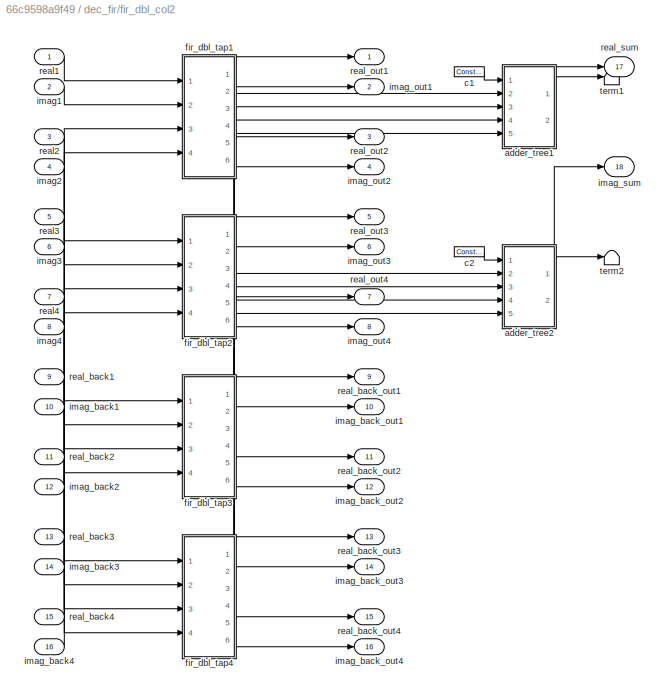
BLOCK [SubSystem] dec_fir/fir_dbl_col2
  AncestorBlock = casper_library_downconverter/fir_dbl_col
  FunctionWithSeparateData = off
  MaskHideContents = off
  MinAlgLoopOccurrences = off
  Opaque = off
  Ports = [16, 18]
  PropExecContextOutsideSubsystem = off
  RTWSystemCode = Auto
  RequestExecContextInheritance = off
  UserDataPersistent = on
BLOCK [SubSystem] dec_fir/fir_dbl_col2/adder_tree1
  AncestorBlock = casper_library_misc/adder_tree
  AttributesFormatString = latency 2
  FunctionWithSeparateData = off
  MaskHideContents = off
  MinAlgLoopOccurrences = off
  Opaque = off
  Ports = [5, 2]
  PropExecContextOutsideSubsystem = off
  RTWSystemCode = Auto
  RequestExecContextInheritance = off
  UserDataPersistent = on
BLOCK [Reference] dec_fir/fir_dbl_col2/adder_tree1/addr1  REF=xbsIndex_r4/AddSub
  Ports = [2, 1]
  SourceBlock = xbsIndex_r4/AddSub
  SourceType = Xilinx Adder/Subtracter Block
  arith_type = Unsigned
  bin_pt = 14
  block_type = addsub
  block_version = 11.4
  dbl_ovrd = off
  en = off
  has_advanced_control = 0
  hw_selection = DSP48
  latency = 1
  mode = Addition
  n_bits = 16
  overflow = Wrap
  pipelined = on
  precision = Full
  quantization = Truncate
  sg_icon_stat = 40,60,2,1,white,blue,0,e85d8a90,right,,[ ],[ ]
  sggui_pos = 22,98,419,344
  use_behavioral_HDL = on
  use_carryin = off
  use_carryout = off
  use_rpm = on
  xl_area = [0,0,0,0,0,0,0]
  xl_use_area = off
BLOCK [Reference] dec_fir/fir_dbl_col2/adder_tree1/addr2  REF=xbsIndex_r4/AddSub
  Ports = [2, 1]
  SourceBlock = xbsIndex_r4/AddSub
  SourceType = Xilinx Adder/Subtracter Block
  arith_type = Unsigned
  bin_pt = 14
  block_type = addsub
  dbl_ovrd = off
  en = off
  has_advanced_control = 0
  hw_selection = DSP48
  latency = 1
  mode = Addition
  n_bits = 16
  overflow = Wrap
  pipelined = on
  precision = Full
  quantization = Truncate
  sg_icon_stat = 40,60,2,1,white,blue,0,e85d8a90,right,,[ ],[ ]
  sggui_pos = -1,-1,-1,-1
  use_behavioral_HDL = on
  use_carryin = off
  use_carryout = off
  use_rpm = on
  xl_area = [0,0,0,0,0,0,0]
  xl_use_area = off
BLOCK [Reference] dec_fir/fir_dbl_col2/adder_tree1/addr3  REF=xbsIndex_r4/AddSub
  Ports = [2, 1]
  SourceBlock = xbsIndex_r4/AddSub
  SourceType = Xilinx Adder/Subtracter Block
  arith_type = Unsigned
  bin_pt = 14
  block_type = addsub
  dbl_ovrd = off
  en = off
  has_advanced_control = 0
  hw_selection = DSP48
  latency = 1
  mode = Addition
  n_bits = 16
  overflow = Wrap
  pipelined = on
  precision = Full
  quantization = Truncate
  sg_icon_stat = 40,60,2,1,white,blue,0,e85d8a90,right,,[ ],[ ]
  sggui_pos = -1,-1,-1,-1
  use_behavioral_HDL = off
  use_carryin = off
  use_carryout = off
  use_rpm = on
  xl_area = [0,0,0,0,0,0,0]
  xl_use_area = off
BLOCK [Inport] dec_fir/fir_dbl_col2/adder_tree1/din1
  IconDisplay = Port number
  Port = 2
BLOCK [Inport] dec_fir/fir_dbl_col2/adder_tree1/din2
  IconDisplay = Port number
  Port = 3
BLOCK [Inport] dec_fir/fir_dbl_col2/adder_tree1/din3
  IconDisplay = Port number
  Port = 4
BLOCK [Inport] dec_fir/fir_dbl_col2/adder_tree1/din4
  IconDisplay = Port number
  Port = 5
BLOCK [Outport] dec_fir/fir_dbl_col2/adder_tree1/dout
  IconDisplay = Port number
  Port = 2
BLOCK [Inport] dec_fir/fir_dbl_col2/adder_tree1/sync
  IconDisplay = Port number
BLOCK [Reference] dec_fir/fir_dbl_col2/adder_tree1/sync_delay  REF=xbsIndex_r4/Delay
  Ports = [1, 1]
  SourceBlock = xbsIndex_r4/Delay
  SourceType = Xilinx Delay Block
  block_type = delay
  block_version = 11.4
  dbl_ovrd = off
  en = off
  has_advanced_control = 0
  infoedit = Hardware notes: A delay line is a chain, each link of which is an SRL16 followed by a flip-flop.
  infoeditControl = Selection of Reset will increase slice count due to use of real FFs and instead of SRLs
  latency = 2
  reg_retiming = on
  rst = off
  sg_icon_stat = 30,30,1,1,white,blue,0,85ce9542,right,,[ ],[ ]
  sggui_pos = 21,71,419,315
  xl_area = [0,0,0,0,0,0,0]
  xl_use_area = off
BLOCK [Outport] dec_fir/fir_dbl_col2/adder_tree1/sync_out
  IconDisplay = Port number
BLOCK [SubSystem] dec_fir/fir_dbl_col2/adder_tree2
  AncestorBlock = casper_library_misc/adder_tree
  AttributesFormatString = latency 2
  FunctionWithSeparateData = off
  MaskHideContents = off
  MinAlgLoopOccurrences = off
  Opaque = off
  Ports = [5, 2]
  PropExecContextOutsideSubsystem = off
  RTWSystemCode = Auto
  RequestExecContextInheritance = off
  UserDataPersistent = on
BLOCK [Reference] dec_fir/fir_dbl_col2/adder_tree2/addr1  REF=xbsIndex_r4/AddSub
  Ports = [2, 1]
  SourceBlock = xbsIndex_r4/AddSub
  SourceType = Xilinx Adder/Subtracter Block
  arith_type = Unsigned
  bin_pt = 14
  block_type = addsub
  block_version = 11.4
  dbl_ovrd = off
  en = off
  has_advanced_control = 0
  hw_selection = DSP48
  latency = 1
  mode = Addition
  n_bits = 16
  overflow = Wrap
  pipelined = on
  precision = Full
  quantization = Truncate
  sg_icon_stat = 40,60,2,1,white,blue,0,e85d8a90,right,,[ ],[ ]
  sggui_pos = 22,98,419,344
  use_behavioral_HDL = on
  use_carryin = off
  use_carryout = off
  use_rpm = on
  xl_area = [0,0,0,0,0,0,0]
  xl_use_area = off
BLOCK [Reference] dec_fir/fir_dbl_col2/adder_tree2/addr2  REF=xbsIndex_r4/AddSub
  Ports = [2, 1]
  SourceBlock = xbsIndex_r4/AddSub
  SourceType = Xilinx Adder/Subtracter Block
  arith_type = Unsigned
  bin_pt = 14
  block_type = addsub
  dbl_ovrd = off
  en = off
  has_advanced_control = 0
  hw_selection = DSP48
  latency = 1
  mode = Addition
  n_bits = 16
  overflow = Wrap
  pipelined = on
  precision = Full
  quantization = Truncate
  sg_icon_stat = 40,60,2,1,white,blue,0,e85d8a90,right,,[ ],[ ]
  sggui_pos = -1,-1,-1,-1
  use_behavioral_HDL = on
  use_carryin = off
  use_carryout = off
  use_rpm = on
  xl_area = [0,0,0,0,0,0,0]
  xl_use_area = off
BLOCK [Reference] dec_fir/fir_dbl_col2/adder_tree2/addr3  REF=xbsIndex_r4/AddSub
  Ports = [2, 1]
  SourceBlock = xbsIndex_r4/AddSub
  SourceType = Xilinx Adder/Subtracter Block
  arith_type = Unsigned
  bin_pt = 14
  block_type = addsub
  dbl_ovrd = off
  en = off
  has_advanced_control = 0
  hw_selection = DSP48
  latency = 1
  mode = Addition
  n_bits = 16
  overflow = Wrap
  pipelined = on
  precision = Full
  quantization = Truncate
  sg_icon_stat = 40,60,2,1,white,blue,0,e85d8a90,right,,[ ],[ ]
  sggui_pos = -1,-1,-1,-1
  use_behavioral_HDL = off
  use_carryin = off
  use_carryout = off
  use_rpm = on
  xl_area = [0,0,0,0,0,0,0]
  xl_use_area = off
BLOCK [Inport] dec_fir/fir_dbl_col2/adder_tree2/din1
  IconDisplay = Port number
  Port = 2
BLOCK [Inport] dec_fir/fir_dbl_col2/adder_tree2/din2
  IconDisplay = Port number
  Port = 3
BLOCK [Inport] dec_fir/fir_dbl_col2/adder_tree2/din3
  IconDisplay = Port number
  Port = 4
BLOCK [Inport] dec_fir/fir_dbl_col2/adder_tree2/din4
  IconDisplay = Port number
  Port = 5
BLOCK [Outport] dec_fir/fir_dbl_col2/adder_tree2/dout
  IconDisplay = Port number
  Port = 2
BLOCK [Inport] dec_fir/fir_dbl_col2/adder_tree2/sync
  IconDisplay = Port number
BLOCK [Reference] dec_fir/fir_dbl_col2/adder_tree2/sync_delay  REF=xbsIndex_r4/Delay
  Ports = [1, 1]
  SourceBlock = xbsIndex_r4/Delay
  SourceType = Xilinx Delay Block
  block_type = delay
  block_version = 11.4
  dbl_ovrd = off
  en = off
  has_advanced_control = 0
  infoedit = Hardware notes: A delay line is a chain, each link of which is an SRL16 followed by a flip-flop.
  infoeditControl = Selection of Reset will increase slice count due to use of real FFs and instead of SRLs
  latency = 2
  reg_retiming = on
  rst = off
  sg_icon_stat = 30,30,1,1,white,blue,0,85ce9542,right,,[ ],[ ]
  sggui_pos = 21,71,419,315
  xl_area = [0,0,0,0,0,0,0]
  xl_use_area = off
BLOCK [Outport] dec_fir/fir_dbl_col2/adder_tree2/sync_out
  IconDisplay = Port number
BLOCK [Reference] dec_fir/fir_dbl_col2/c1  REF=xbsIndex_r4/Constant
  Ports = [0, 1]
  SourceBlock = xbsIndex_r4/Constant
  SourceType = Xilinx Constant Block Block
  arith_type = Signed (2's comp)
  bin_pt = 14
  block_type = constant
  carry = CIN
  const = 1
  dbl_ovrd = off
  dsp48_infoedit = The use of this block for DSP48 instructions is deprecated.  Please use the Opmode block.
  equ = P=C
  exp_width = 8
  explicit_period = on
  frac_width = 24
  gui_display_data_type = Fixed-point
  has_advanced_control = 0
  inp1 = P
  inp2 = PCIN>>17
  n_bits = 16
  opr = +
  opselect = C
  period = 1
  preci_type = Single
  sg_icon_stat = 30,10,0,1,white,blue,0,1c72b5be,right,,[ ],[ ]
  sggui_pos = -1,-1,-1,-1
BLOCK [Reference] dec_fir/fir_dbl_col2/c2  REF=xbsIndex_r4/Constant
  Ports = [0, 1]
  SourceBlock = xbsIndex_r4/Constant
  SourceType = Xilinx Constant Block Block
  arith_type = Signed (2's comp)
  bin_pt = 14
  block_type = constant
  carry = CIN
  const = 1
  dbl_ovrd = off
  dsp48_infoedit = The use of this block for DSP48 instructions is deprecated.  Please use the Opmode block.
  equ = P=C
  exp_width = 8
  explicit_period = on
  frac_width = 24
  gui_display_data_type = Fixed-point
  has_advanced_control = 0
  inp1 = P
  inp2 = PCIN>>17
  n_bits = 16
  opr = +
  opselect = C
  period = 1
  preci_type = Single
  sg_icon_stat = 30,10,0,1,white,blue,0,1c72b5be,right,,[ ],[ ]
  sggui_pos = -1,-1,-1,-1
BLOCK [SubSystem] dec_fir/fir_dbl_col2/fir_dbl_tap1
  AncestorBlock = casper_library_downconverter/fir_dbl_tap
  FunctionWithSeparateData = off
  MaskHideContents = off
  MinAlgLoopOccurrences = off
  Opaque = off
  Ports = [4, 6]
  PropExecContextOutsideSubsystem = off
  RTWSystemCode = Auto
  RequestExecContextInheritance = off
  UserDataPersistent = on
BLOCK [Reference] dec_fir/fir_dbl_col2/fir_dbl_tap1/AddSub0  REF=xbsIndex_r4/AddSub
  Ports = [2, 1]
  SourceBlock = xbsIndex_r4/AddSub
  SourceType = Xilinx Adder/Subtracter Block
  arith_type = Signed  (2's comp)
  bin_pt = 16
  block_type = addsub
  dbl_ovrd = off
  en = off
  has_advanced_control = 0
  hw_selection = Fabric
  latency = add_latency
  mode = Addition
  n_bits = 18
  overflow = Wrap
  pipelined = off
  precision = Full
  quantization = Truncate
  sg_icon_stat = 50,51,2,1,white,blue,0,e85d8a90,right,,[ ],[ ]
  sggui_pos = -1,-1,-1,-1
  use_behavioral_HDL = on
  use_carryin = off
  use_carryout = off
  use_rpm = on
  xl_area = [0,0,0,0,0,0,0]
  xl_use_area = off
BLOCK [Reference] dec_fir/fir_dbl_col2/fir_dbl_tap1/AddSub1  REF=xbsIndex_r4/AddSub
  Ports = [2, 1]
  SourceBlock = xbsIndex_r4/AddSub
  SourceType = Xilinx Adder/Subtracter Block
  arith_type = Signed  (2's comp)
  bin_pt = 16
  block_type = addsub
  dbl_ovrd = off
  en = off
  has_advanced_control = 0
  hw_selection = Fabric
  latency = add_latency
  mode = Addition
  n_bits = 18
  overflow = Wrap
  pipelined = off
  precision = Full
  quantization = Truncate
  sg_icon_stat = 50,51,2,1,white,blue,0,e85d8a90,right,,[ ],[ ]
  sggui_pos = -1,-1,-1,-1
  use_behavioral_HDL = on
  use_carryin = off
  use_carryout = off
  use_rpm = on
  xl_area = [0,0,0,0,0,0,0]
  xl_use_area = off
BLOCK [Reference] dec_fir/fir_dbl_col2/fir_dbl_tap1/Mult0  REF=xbsIndex_r4/Mult
  Ports = [2, 1]
  SourceBlock = xbsIndex_r4/Mult
  SourceType = Xilinx Multiplier Block
  arith_type = Signed  (2's comp)
  bin_pt = 17
  block_type = mult
  dbl_ovrd = off
  en = off
  has_advanced_control = 0
  latency = mult_latency
  n_bits = 18
  opt = Speed
  optimum_pipeline = off
  overflow = Wrap
  pipeline = on
  placement_style = Rectangular shape
  precision = Full
  quantization = Truncate
  sg_icon_stat = 50,51,2,1,white,blue,0,2fbe4d8a,right,,[ ],[ ]
  sggui_pos = -1,-1,-1,-1
  use_behavioral_HDL = on
  use_embedded = on
  use_rpm = off
  xl_area = [0,0,0,0,0,0,0]
  xl_use_area = off
BLOCK [Reference] dec_fir/fir_dbl_col2/fir_dbl_tap1/Mult1  REF=xbsIndex_r4/Mult
  Ports = [2, 1]
  SourceBlock = xbsIndex_r4/Mult
  SourceType = Xilinx Multiplier Block
  arith_type = Signed  (2's comp)
  bin_pt = 17
  block_type = mult
  dbl_ovrd = off
  en = off
  has_advanced_control = 0
  latency = mult_latency
  n_bits = 18
  opt = Speed
  optimum_pipeline = off
  overflow = Wrap
  pipeline = on
  placement_style = Rectangular shape
  precision = Full
  quantization = Truncate
  sg_icon_stat = 50,51,2,1,white,blue,0,2fbe4d8a,right,,[ ],[ ]
  sggui_pos = -1,-1,-1,-1
  use_behavioral_HDL = on
  use_embedded = on
  use_rpm = off
  xl_area = [0,0,0,0,0,0,0]
  xl_use_area = off
BLOCK [Reference] dec_fir/fir_dbl_col2/fir_dbl_tap1/Register0  REF=xbsIndex_r4/Register
  Ports = [1, 1]
  SourceBlock = xbsIndex_r4/Register
  SourceType = Xilinx Register Block
  block_type = register
  dbl_ovrd = off
  en = off
  has_advanced_control = 0
  init = 0
  rst = off
  sg_icon_stat = 45,48,1,1,white,blue,0,c80657c5,right,,[ ],[ ]
  sggui_pos = -1,-1,-1,-1
  xl_area = [0,0,0,0,0,0,0]
  xl_use_area = off
BLOCK [Reference] dec_fir/fir_dbl_col2/fir_dbl_tap1/Register1  REF=xbsIndex_r4/Register
  Ports = [1, 1]
  SourceBlock = xbsIndex_r4/Register
  SourceType = Xilinx Register Block
  block_type = register
  dbl_ovrd = off
  en = off
  has_advanced_control = 0
  init = 0
  rst = off
  sg_icon_stat = 45,48,1,1,white,blue,0,c80657c5,right,,[ ],[ ]
  sggui_pos = -1,-1,-1,-1
  xl_area = [0,0,0,0,0,0,0]
  xl_use_area = off
BLOCK [Reference] dec_fir/fir_dbl_col2/fir_dbl_tap1/Register2  REF=xbsIndex_r4/Register
  Ports = [1, 1]
  SourceBlock = xbsIndex_r4/Register
  SourceType = Xilinx Register Block
  block_type = register
  dbl_ovrd = off
  en = off
  has_advanced_control = 0
  init = 0
  rst = off
  sg_icon_stat = 45,48,1,1,white,blue,0,c80657c5,right,,[ ],[ ]
  sggui_pos = -1,-1,-1,-1
  xl_area = [0,0,0,0,0,0,0]
  xl_use_area = off
BLOCK [Reference] dec_fir/fir_dbl_col2/fir_dbl_tap1/Register3  REF=xbsIndex_r4/Register
  Ports = [1, 1]
  SourceBlock = xbsIndex_r4/Register
  SourceType = Xilinx Register Block
  block_type = register
  dbl_ovrd = off
  en = off
  has_advanced_control = 0
  init = 0
  rst = off
  sg_icon_stat = 45,48,1,1,white,blue,0,c80657c5,right,,[ ],[ ]
  sggui_pos = -1,-1,-1,-1
  xl_area = [0,0,0,0,0,0,0]
  xl_use_area = off
BLOCK [Inport] dec_fir/fir_dbl_col2/fir_dbl_tap1/a
  IconDisplay = Port number
BLOCK [Outport] dec_fir/fir_dbl_col2/fir_dbl_tap1/a_out
  IconDisplay = Port number
BLOCK [Inport] dec_fir/fir_dbl_col2/fir_dbl_tap1/b
  IconDisplay = Port number
  Port = 2
BLOCK [Outport] dec_fir/fir_dbl_col2/fir_dbl_tap1/b_out
  IconDisplay = Port number
  Port = 2
BLOCK [Inport] dec_fir/fir_dbl_col2/fir_dbl_tap1/c
  IconDisplay = Port number
  Port = 3
BLOCK [Outport] dec_fir/fir_dbl_col2/fir_dbl_tap1/c_out
  IconDisplay = Port number
  Port = 3
BLOCK [Reference] dec_fir/fir_dbl_col2/fir_dbl_tap1/coefficient  REF=xbsIndex_r4/Constant
  Ports = [0, 1]
  SourceBlock = xbsIndex_r4/Constant
  SourceType = Xilinx Constant Block Block
  arith_type = Signed (2's comp)
  bin_pt = coeff_bin_pt
  block_type = constant
  carry = CIN
  const = factor
  dbl_ovrd = off
  dsp48_infoedit = The use of this block for DSP48 instructions is deprecated.  Please use the Opmode block.
  equ = P=C
  exp_width = 8
  explicit_period = on
  frac_width = 24
  gui_display_data_type = Fixed-point
  has_advanced_control = 0
  inp1 = P
  inp2 = PCIN>>17
  n_bits = coeff_bit_width
  opr = +
  opselect = C
  period = 1
  preci_type = Single
  sg_icon_stat = 120,32,0,1,white,blue,0,90d508b5,right,,[ ],[ ]
  sggui_pos = -1,-1,-1,-1
BLOCK [Inport] dec_fir/fir_dbl_col2/fir_dbl_tap1/d
  IconDisplay = Port number
  Port = 4
BLOCK [Outport] dec_fir/fir_dbl_col2/fir_dbl_tap1/d_out
  IconDisplay = Port number
  Port = 4
BLOCK [Outport] dec_fir/fir_dbl_col2/fir_dbl_tap1/imag
  IconDisplay = Port number
  Port = 6
BLOCK [Outport] dec_fir/fir_dbl_col2/fir_dbl_tap1/real
  IconDisplay = Port number
  Port = 5
BLOCK [SubSystem] dec_fir/fir_dbl_col2/fir_dbl_tap2
  AncestorBlock = casper_library_downconverter/fir_dbl_tap
  FunctionWithSeparateData = off
  MaskHideContents = off
  MinAlgLoopOccurrences = off
  Opaque = off
  Ports = [4, 6]
  PropExecContextOutsideSubsystem = off
  RTWSystemCode = Auto
  RequestExecContextInheritance = off
  UserDataPersistent = on
BLOCK [Reference] dec_fir/fir_dbl_col2/fir_dbl_tap2/AddSub0  REF=xbsIndex_r4/AddSub
  Ports = [2, 1]
  SourceBlock = xbsIndex_r4/AddSub
  SourceType = Xilinx Adder/Subtracter Block
  arith_type = Signed  (2's comp)
  bin_pt = 16
  block_type = addsub
  dbl_ovrd = off
  en = off
  has_advanced_control = 0
  hw_selection = Fabric
  latency = add_latency
  mode = Addition
  n_bits = 18
  overflow = Wrap
  pipelined = off
  precision = Full
  quantization = Truncate
  sg_icon_stat = 50,51,2,1,white,blue,0,e85d8a90,right,,[ ],[ ]
  sggui_pos = -1,-1,-1,-1
  use_behavioral_HDL = on
  use_carryin = off
  use_carryout = off
  use_rpm = on
  xl_area = [0,0,0,0,0,0,0]
  xl_use_area = off
BLOCK [Reference] dec_fir/fir_dbl_col2/fir_dbl_tap2/AddSub1  REF=xbsIndex_r4/AddSub
  Ports = [2, 1]
  SourceBlock = xbsIndex_r4/AddSub
  SourceType = Xilinx Adder/Subtracter Block
  arith_type = Signed  (2's comp)
  bin_pt = 16
  block_type = addsub
  dbl_ovrd = off
  en = off
  has_advanced_control = 0
  hw_selection = Fabric
  latency = add_latency
  mode = Addition
  n_bits = 18
  overflow = Wrap
  pipelined = off
  precision = Full
  quantization = Truncate
  sg_icon_stat = 50,51,2,1,white,blue,0,e85d8a90,right,,[ ],[ ]
  sggui_pos = -1,-1,-1,-1
  use_behavioral_HDL = on
  use_carryin = off
  use_carryout = off
  use_rpm = on
  xl_area = [0,0,0,0,0,0,0]
  xl_use_area = off
BLOCK [Reference] dec_fir/fir_dbl_col2/fir_dbl_tap2/Mult0  REF=xbsIndex_r4/Mult
  Ports = [2, 1]
  SourceBlock = xbsIndex_r4/Mult
  SourceType = Xilinx Multiplier Block
  arith_type = Signed  (2's comp)
  bin_pt = 17
  block_type = mult
  dbl_ovrd = off
  en = off
  has_advanced_control = 0
  latency = mult_latency
  n_bits = 18
  opt = Speed
  optimum_pipeline = off
  overflow = Wrap
  pipeline = on
  placement_style = Rectangular shape
  precision = Full
  quantization = Truncate
  sg_icon_stat = 50,51,2,1,white,blue,0,2fbe4d8a,right,,[ ],[ ]
  sggui_pos = -1,-1,-1,-1
  use_behavioral_HDL = on
  use_embedded = on
  use_rpm = off
  xl_area = [0,0,0,0,0,0,0]
  xl_use_area = off
BLOCK [Reference] dec_fir/fir_dbl_col2/fir_dbl_tap2/Mult1  REF=xbsIndex_r4/Mult
  Ports = [2, 1]
  SourceBlock = xbsIndex_r4/Mult
  SourceType = Xilinx Multiplier Block
  arith_type = Signed  (2's comp)
  bin_pt = 17
  block_type = mult
  dbl_ovrd = off
  en = off
  has_advanced_control = 0
  latency = mult_latency
  n_bits = 18
  opt = Speed
  optimum_pipeline = off
  overflow = Wrap
  pipeline = on
  placement_style = Rectangular shape
  precision = Full
  quantization = Truncate
  sg_icon_stat = 50,51,2,1,white,blue,0,2fbe4d8a,right,,[ ],[ ]
  sggui_pos = -1,-1,-1,-1
  use_behavioral_HDL = on
  use_embedded = on
  use_rpm = off
  xl_area = [0,0,0,0,0,0,0]
  xl_use_area = off
BLOCK [Reference] dec_fir/fir_dbl_col2/fir_dbl_tap2/Register0  REF=xbsIndex_r4/Register
  Ports = [1, 1]
  SourceBlock = xbsIndex_r4/Register
  SourceType = Xilinx Register Block
  block_type = register
  dbl_ovrd = off
  en = off
  has_advanced_control = 0
  init = 0
  rst = off
  sg_icon_stat = 45,48,1,1,white,blue,0,c80657c5,right,,[ ],[ ]
  sggui_pos = -1,-1,-1,-1
  xl_area = [0,0,0,0,0,0,0]
  xl_use_area = off
BLOCK [Reference] dec_fir/fir_dbl_col2/fir_dbl_tap2/Register1  REF=xbsIndex_r4/Register
  Ports = [1, 1]
  SourceBlock = xbsIndex_r4/Register
  SourceType = Xilinx Register Block
  block_type = register
  dbl_ovrd = off
  en = off
  has_advanced_control = 0
  init = 0
  rst = off
  sg_icon_stat = 45,48,1,1,white,blue,0,c80657c5,right,,[ ],[ ]
  sggui_pos = -1,-1,-1,-1
  xl_area = [0,0,0,0,0,0,0]
  xl_use_area = off
BLOCK [Reference] dec_fir/fir_dbl_col2/fir_dbl_tap2/Register2  REF=xbsIndex_r4/Register
  Ports = [1, 1]
  SourceBlock = xbsIndex_r4/Register
  SourceType = Xilinx Register Block
  block_type = register
  dbl_ovrd = off
  en = off
  has_advanced_control = 0
  init = 0
  rst = off
  sg_icon_stat = 45,48,1,1,white,blue,0,c80657c5,right,,[ ],[ ]
  sggui_pos = -1,-1,-1,-1
  xl_area = [0,0,0,0,0,0,0]
  xl_use_area = off
BLOCK [Reference] dec_fir/fir_dbl_col2/fir_dbl_tap2/Register3  REF=xbsIndex_r4/Register
  Ports = [1, 1]
  SourceBlock = xbsIndex_r4/Register
  SourceType = Xilinx Register Block
  block_type = register
  dbl_ovrd = off
  en = off
  has_advanced_control = 0
  init = 0
  rst = off
  sg_icon_stat = 45,48,1,1,white,blue,0,c80657c5,right,,[ ],[ ]
  sggui_pos = -1,-1,-1,-1
  xl_area = [0,0,0,0,0,0,0]
  xl_use_area = off
BLOCK [Inport] dec_fir/fir_dbl_col2/fir_dbl_tap2/a
  IconDisplay = Port number
BLOCK [Outport] dec_fir/fir_dbl_col2/fir_dbl_tap2/a_out
  IconDisplay = Port number
BLOCK [Inport] dec_fir/fir_dbl_col2/fir_dbl_tap2/b
  IconDisplay = Port number
  Port = 2
BLOCK [Outport] dec_fir/fir_dbl_col2/fir_dbl_tap2/b_out
  IconDisplay = Port number
  Port = 2
BLOCK [Inport] dec_fir/fir_dbl_col2/fir_dbl_tap2/c
  IconDisplay = Port number
  Port = 3
BLOCK [Outport] dec_fir/fir_dbl_col2/fir_dbl_tap2/c_out
  IconDisplay = Port number
  Port = 3
BLOCK [Reference] dec_fir/fir_dbl_col2/fir_dbl_tap2/coefficient  REF=xbsIndex_r4/Constant
  Ports = [0, 1]
  SourceBlock = xbsIndex_r4/Constant
  SourceType = Xilinx Constant Block Block
  arith_type = Signed (2's comp)
  bin_pt = coeff_bin_pt
  block_type = constant
  carry = CIN
  const = factor
  dbl_ovrd = off
  dsp48_infoedit = The use of this block for DSP48 instructions is deprecated.  Please use the Opmode block.
  equ = P=C
  exp_width = 8
  explicit_period = on
  frac_width = 24
  gui_display_data_type = Fixed-point
  has_advanced_control = 0
  inp1 = P
  inp2 = PCIN>>17
  n_bits = coeff_bit_width
  opr = +
  opselect = C
  period = 1
  preci_type = Single
  sg_icon_stat = 120,32,0,1,white,blue,0,16d03515,right,,[ ],[ ]
  sggui_pos = -1,-1,-1,-1
BLOCK [Inport] dec_fir/fir_dbl_col2/fir_dbl_tap2/d
  IconDisplay = Port number
  Port = 4
BLOCK [Outport] dec_fir/fir_dbl_col2/fir_dbl_tap2/d_out
  IconDisplay = Port number
  Port = 4
BLOCK [Outport] dec_fir/fir_dbl_col2/fir_dbl_tap2/imag
  IconDisplay = Port number
  Port = 6
BLOCK [Outport] dec_fir/fir_dbl_col2/fir_dbl_tap2/real
  IconDisplay = Port number
  Port = 5
BLOCK [SubSystem] dec_fir/fir_dbl_col2/fir_dbl_tap3
  AncestorBlock = casper_library_downconverter/fir_dbl_tap
  FunctionWithSeparateData = off
  MaskHideContents = off
  MinAlgLoopOccurrences = off
  Opaque = off
  Ports = [4, 6]
  PropExecContextOutsideSubsystem = off
  RTWSystemCode = Auto
  RequestExecContextInheritance = off
  UserDataPersistent = on
BLOCK [Reference] dec_fir/fir_dbl_col2/fir_dbl_tap3/AddSub0  REF=xbsIndex_r4/AddSub
  Ports = [2, 1]
  SourceBlock = xbsIndex_r4/AddSub
  SourceType = Xilinx Adder/Subtracter Block
  arith_type = Signed  (2's comp)
  bin_pt = 16
  block_type = addsub
  dbl_ovrd = off
  en = off
  has_advanced_control = 0
  hw_selection = Fabric
  latency = add_latency
  mode = Addition
  n_bits = 18
  overflow = Wrap
  pipelined = off
  precision = Full
  quantization = Truncate
  sg_icon_stat = 50,51,2,1,white,blue,0,e85d8a90,right,,[ ],[ ]
  sggui_pos = -1,-1,-1,-1
  use_behavioral_HDL = on
  use_carryin = off
  use_carryout = off
  use_rpm = on
  xl_area = [0,0,0,0,0,0,0]
  xl_use_area = off
BLOCK [Reference] dec_fir/fir_dbl_col2/fir_dbl_tap3/AddSub1  REF=xbsIndex_r4/AddSub
  Ports = [2, 1]
  SourceBlock = xbsIndex_r4/AddSub
  SourceType = Xilinx Adder/Subtracter Block
  arith_type = Signed  (2's comp)
  bin_pt = 16
  block_type = addsub
  dbl_ovrd = off
  en = off
  has_advanced_control = 0
  hw_selection = Fabric
  latency = add_latency
  mode = Addition
  n_bits = 18
  overflow = Wrap
  pipelined = off
  precision = Full
  quantization = Truncate
  sg_icon_stat = 50,51,2,1,white,blue,0,e85d8a90,right,,[ ],[ ]
  sggui_pos = -1,-1,-1,-1
  use_behavioral_HDL = on
  use_carryin = off
  use_carryout = off
  use_rpm = on
  xl_area = [0,0,0,0,0,0,0]
  xl_use_area = off
BLOCK [Reference] dec_fir/fir_dbl_col2/fir_dbl_tap3/Mult0  REF=xbsIndex_r4/Mult
  Ports = [2, 1]
  SourceBlock = xbsIndex_r4/Mult
  SourceType = Xilinx Multiplier Block
  arith_type = Signed  (2's comp)
  bin_pt = 17
  block_type = mult
  dbl_ovrd = off
  en = off
  has_advanced_control = 0
  latency = mult_latency
  n_bits = 18
  opt = Speed
  optimum_pipeline = off
  overflow = Wrap
  pipeline = on
  placement_style = Rectangular shape
  precision = Full
  quantization = Truncate
  sg_icon_stat = 50,51,2,1,white,blue,0,2fbe4d8a,right,,[ ],[ ]
  sggui_pos = -1,-1,-1,-1
  use_behavioral_HDL = on
  use_embedded = on
  use_rpm = off
  xl_area = [0,0,0,0,0,0,0]
  xl_use_area = off
BLOCK [Reference] dec_fir/fir_dbl_col2/fir_dbl_tap3/Mult1  REF=xbsIndex_r4/Mult
  Ports = [2, 1]
  SourceBlock = xbsIndex_r4/Mult
  SourceType = Xilinx Multiplier Block
  arith_type = Signed  (2's comp)
  bin_pt = 17
  block_type = mult
  dbl_ovrd = off
  en = off
  has_advanced_control = 0
  latency = mult_latency
  n_bits = 18
  opt = Speed
  optimum_pipeline = off
  overflow = Wrap
  pipeline = on
  placement_style = Rectangular shape
  precision = Full
  quantization = Truncate
  sg_icon_stat = 50,51,2,1,white,blue,0,2fbe4d8a,right,,[ ],[ ]
  sggui_pos = -1,-1,-1,-1
  use_behavioral_HDL = on
  use_embedded = on
  use_rpm = off
  xl_area = [0,0,0,0,0,0,0]
  xl_use_area = off
BLOCK [Reference] dec_fir/fir_dbl_col2/fir_dbl_tap3/Register0  REF=xbsIndex_r4/Register
  Ports = [1, 1]
  SourceBlock = xbsIndex_r4/Register
  SourceType = Xilinx Register Block
  block_type = register
  dbl_ovrd = off
  en = off
  has_advanced_control = 0
  init = 0
  rst = off
  sg_icon_stat = 45,48,1,1,white,blue,0,c80657c5,right,,[ ],[ ]
  sggui_pos = -1,-1,-1,-1
  xl_area = [0,0,0,0,0,0,0]
  xl_use_area = off
BLOCK [Reference] dec_fir/fir_dbl_col2/fir_dbl_tap3/Register1  REF=xbsIndex_r4/Register
  Ports = [1, 1]
  SourceBlock = xbsIndex_r4/Register
  SourceType = Xilinx Register Block
  block_type = register
  dbl_ovrd = off
  en = off
  has_advanced_control = 0
  init = 0
  rst = off
  sg_icon_stat = 45,48,1,1,white,blue,0,c80657c5,right,,[ ],[ ]
  sggui_pos = -1,-1,-1,-1
  xl_area = [0,0,0,0,0,0,0]
  xl_use_area = off
BLOCK [Reference] dec_fir/fir_dbl_col2/fir_dbl_tap3/Register2  REF=xbsIndex_r4/Register
  Ports = [1, 1]
  SourceBlock = xbsIndex_r4/Register
  SourceType = Xilinx Register Block
  block_type = register
  dbl_ovrd = off
  en = off
  has_advanced_control = 0
  init = 0
  rst = off
  sg_icon_stat = 45,48,1,1,white,blue,0,c80657c5,right,,[ ],[ ]
  sggui_pos = -1,-1,-1,-1
  xl_area = [0,0,0,0,0,0,0]
  xl_use_area = off
BLOCK [Reference] dec_fir/fir_dbl_col2/fir_dbl_tap3/Register3  REF=xbsIndex_r4/Register
  Ports = [1, 1]
  SourceBlock = xbsIndex_r4/Register
  SourceType = Xilinx Register Block
  block_type = register
  dbl_ovrd = off
  en = off
  has_advanced_control = 0
  init = 0
  rst = off
  sg_icon_stat = 45,48,1,1,white,blue,0,c80657c5,right,,[ ],[ ]
  sggui_pos = -1,-1,-1,-1
  xl_area = [0,0,0,0,0,0,0]
  xl_use_area = off
BLOCK [Inport] dec_fir/fir_dbl_col2/fir_dbl_tap3/a
  IconDisplay = Port number
BLOCK [Outport] dec_fir/fir_dbl_col2/fir_dbl_tap3/a_out
  IconDisplay = Port number
BLOCK [Inport] dec_fir/fir_dbl_col2/fir_dbl_tap3/b
  IconDisplay = Port number
  Port = 2
BLOCK [Outport] dec_fir/fir_dbl_col2/fir_dbl_tap3/b_out
  IconDisplay = Port number
  Port = 2
BLOCK [Inport] dec_fir/fir_dbl_col2/fir_dbl_tap3/c
  IconDisplay = Port number
  Port = 3
BLOCK [Outport] dec_fir/fir_dbl_col2/fir_dbl_tap3/c_out
  IconDisplay = Port number
  Port = 3
BLOCK [Reference] dec_fir/fir_dbl_col2/fir_dbl_tap3/coefficient  REF=xbsIndex_r4/Constant
  Ports = [0, 1]
  SourceBlock = xbsIndex_r4/Constant
  SourceType = Xilinx Constant Block Block
  arith_type = Signed (2's comp)
  bin_pt = coeff_bin_pt
  block_type = constant
  carry = CIN
  const = factor
  dbl_ovrd = off
  dsp48_infoedit = The use of this block for DSP48 instructions is deprecated.  Please use the Opmode block.
  equ = P=C
  exp_width = 8
  explicit_period = on
  frac_width = 24
  gui_display_data_type = Fixed-point
  has_advanced_control = 0
  inp1 = P
  inp2 = PCIN>>17
  n_bits = coeff_bit_width
  opr = +
  opselect = C
  period = 1
  preci_type = Single
  sg_icon_stat = 120,32,0,1,white,blue,0,b7029b71,right,,[ ],[ ]
  sggui_pos = -1,-1,-1,-1
BLOCK [Inport] dec_fir/fir_dbl_col2/fir_dbl_tap3/d
  IconDisplay = Port number
  Port = 4
BLOCK [Outport] dec_fir/fir_dbl_col2/fir_dbl_tap3/d_out
  IconDisplay = Port number
  Port = 4
BLOCK [Outport] dec_fir/fir_dbl_col2/fir_dbl_tap3/imag
  IconDisplay = Port number
  Port = 6
BLOCK [Outport] dec_fir/fir_dbl_col2/fir_dbl_tap3/real
  IconDisplay = Port number
  Port = 5
BLOCK [SubSystem] dec_fir/fir_dbl_col2/fir_dbl_tap4
  AncestorBlock = casper_library_downconverter/fir_dbl_tap
  FunctionWithSeparateData = off
  MaskHideContents = off
  MinAlgLoopOccurrences = off
  Opaque = off
  Ports = [4, 6]
  PropExecContextOutsideSubsystem = off
  RTWSystemCode = Auto
  RequestExecContextInheritance = off
  UserDataPersistent = on
BLOCK [Reference] dec_fir/fir_dbl_col2/fir_dbl_tap4/AddSub0  REF=xbsIndex_r4/AddSub
  Ports = [2, 1]
  SourceBlock = xbsIndex_r4/AddSub
  SourceType = Xilinx Adder/Subtracter Block
  arith_type = Signed  (2's comp)
  bin_pt = 16
  block_type = addsub
  dbl_ovrd = off
  en = off
  has_advanced_control = 0
  hw_selection = Fabric
  latency = add_latency
  mode = Addition
  n_bits = 18
  overflow = Wrap
  pipelined = off
  precision = Full
  quantization = Truncate
  sg_icon_stat = 50,51,2,1,white,blue,0,e85d8a90,right,,[ ],[ ]
  sggui_pos = -1,-1,-1,-1
  use_behavioral_HDL = on
  use_carryin = off
  use_carryout = off
  use_rpm = on
  xl_area = [0,0,0,0,0,0,0]
  xl_use_area = off
BLOCK [Reference] dec_fir/fir_dbl_col2/fir_dbl_tap4/AddSub1  REF=xbsIndex_r4/AddSub
  Ports = [2, 1]
  SourceBlock = xbsIndex_r4/AddSub
  SourceType = Xilinx Adder/Subtracter Block
  arith_type = Signed  (2's comp)
  bin_pt = 16
  block_type = addsub
  dbl_ovrd = off
  en = off
  has_advanced_control = 0
  hw_selection = Fabric
  latency = add_latency
  mode = Addition
  n_bits = 18
  overflow = Wrap
  pipelined = off
  precision = Full
  quantization = Truncate
  sg_icon_stat = 50,51,2,1,white,blue,0,e85d8a90,right,,[ ],[ ]
  sggui_pos = -1,-1,-1,-1
  use_behavioral_HDL = on
  use_carryin = off
  use_carryout = off
  use_rpm = on
  xl_area = [0,0,0,0,0,0,0]
  xl_use_area = off
BLOCK [Reference] dec_fir/fir_dbl_col2/fir_dbl_tap4/Mult0  REF=xbsIndex_r4/Mult
  Ports = [2, 1]
  SourceBlock = xbsIndex_r4/Mult
  SourceType = Xilinx Multiplier Block
  arith_type = Signed  (2's comp)
  bin_pt = 17
  block_type = mult
  dbl_ovrd = off
  en = off
  has_advanced_control = 0
  latency = mult_latency
  n_bits = 18
  opt = Speed
  optimum_pipeline = off
  overflow = Wrap
  pipeline = on
  placement_style = Rectangular shape
  precision = Full
  quantization = Truncate
  sg_icon_stat = 50,51,2,1,white,blue,0,2fbe4d8a,right,,[ ],[ ]
  sggui_pos = -1,-1,-1,-1
  use_behavioral_HDL = on
  use_embedded = on
  use_rpm = off
  xl_area = [0,0,0,0,0,0,0]
  xl_use_area = off
BLOCK [Reference] dec_fir/fir_dbl_col2/fir_dbl_tap4/Mult1  REF=xbsIndex_r4/Mult
  Ports = [2, 1]
  SourceBlock = xbsIndex_r4/Mult
  SourceType = Xilinx Multiplier Block
  arith_type = Signed  (2's comp)
  bin_pt = 17
  block_type = mult
  dbl_ovrd = off
  en = off
  has_advanced_control = 0
  latency = mult_latency
  n_bits = 18
  opt = Speed
  optimum_pipeline = off
  overflow = Wrap
  pipeline = on
  placement_style = Rectangular shape
  precision = Full
  quantization = Truncate
  sg_icon_stat = 50,51,2,1,white,blue,0,2fbe4d8a,right,,[ ],[ ]
  sggui_pos = -1,-1,-1,-1
  use_behavioral_HDL = on
  use_embedded = on
  use_rpm = off
  xl_area = [0,0,0,0,0,0,0]
  xl_use_area = off
BLOCK [Reference] dec_fir/fir_dbl_col2/fir_dbl_tap4/Register0  REF=xbsIndex_r4/Register
  Ports = [1, 1]
  SourceBlock = xbsIndex_r4/Register
  SourceType = Xilinx Register Block
  block_type = register
  dbl_ovrd = off
  en = off
  has_advanced_control = 0
  init = 0
  rst = off
  sg_icon_stat = 45,48,1,1,white,blue,0,c80657c5,right,,[ ],[ ]
  sggui_pos = -1,-1,-1,-1
  xl_area = [0,0,0,0,0,0,0]
  xl_use_area = off
BLOCK [Reference] dec_fir/fir_dbl_col2/fir_dbl_tap4/Register1  REF=xbsIndex_r4/Register
  Ports = [1, 1]
  SourceBlock = xbsIndex_r4/Register
  SourceType = Xilinx Register Block
  block_type = register
  dbl_ovrd = off
  en = off
  has_advanced_control = 0
  init = 0
  rst = off
  sg_icon_stat = 45,48,1,1,white,blue,0,c80657c5,right,,[ ],[ ]
  sggui_pos = -1,-1,-1,-1
  xl_area = [0,0,0,0,0,0,0]
  xl_use_area = off
BLOCK [Reference] dec_fir/fir_dbl_col2/fir_dbl_tap4/Register2  REF=xbsIndex_r4/Register
  Ports = [1, 1]
  SourceBlock = xbsIndex_r4/Register
  SourceType = Xilinx Register Block
  block_type = register
  dbl_ovrd = off
  en = off
  has_advanced_control = 0
  init = 0
  rst = off
  sg_icon_stat = 45,48,1,1,white,blue,0,c80657c5,right,,[ ],[ ]
  sggui_pos = -1,-1,-1,-1
  xl_area = [0,0,0,0,0,0,0]
  xl_use_area = off
BLOCK [Reference] dec_fir/fir_dbl_col2/fir_dbl_tap4/Register3  REF=xbsIndex_r4/Register
  Ports = [1, 1]
  SourceBlock = xbsIndex_r4/Register
  SourceType = Xilinx Register Block
  block_type = register
  dbl_ovrd = off
  en = off
  has_advanced_control = 0
  init = 0
  rst = off
  sg_icon_stat = 45,48,1,1,white,blue,0,c80657c5,right,,[ ],[ ]
  sggui_pos = -1,-1,-1,-1
  xl_area = [0,0,0,0,0,0,0]
  xl_use_area = off
BLOCK [Inport] dec_fir/fir_dbl_col2/fir_dbl_tap4/a
  IconDisplay = Port number
BLOCK [Outport] dec_fir/fir_dbl_col2/fir_dbl_tap4/a_out
  IconDisplay = Port number
BLOCK [Inport] dec_fir/fir_dbl_col2/fir_dbl_tap4/b
  IconDisplay = Port number
  Port = 2
BLOCK [Outport] dec_fir/fir_dbl_col2/fir_dbl_tap4/b_out
  IconDisplay = Port number
  Port = 2
BLOCK [Inport] dec_fir/fir_dbl_col2/fir_dbl_tap4/c
  IconDisplay = Port number
  Port = 3
BLOCK [Outport] dec_fir/fir_dbl_col2/fir_dbl_tap4/c_out
  IconDisplay = Port number
  Port = 3
BLOCK [Reference] dec_fir/fir_dbl_col2/fir_dbl_tap4/coefficient  REF=xbsIndex_r4/Constant
  Ports = [0, 1]
  SourceBlock = xbsIndex_r4/Constant
  SourceType = Xilinx Constant Block Block
  arith_type = Signed (2's comp)
  bin_pt = coeff_bin_pt
  block_type = constant
  carry = CIN
  const = factor
  dbl_ovrd = off
  dsp48_infoedit = The use of this block for DSP48 instructions is deprecated.  Please use the Opmode block.
  equ = P=C
  exp_width = 8
  explicit_period = on
  frac_width = 24
  gui_display_data_type = Fixed-point
  has_advanced_control = 0
  inp1 = P
  inp2 = PCIN>>17
  n_bits = coeff_bit_width
  opr = +
  opselect = C
  period = 1
  preci_type = Single
  sg_icon_stat = 120,32,0,1,white,blue,0,8959b2d3,right,,[ ],[ ]
  sggui_pos = -1,-1,-1,-1
BLOCK [Inport] dec_fir/fir_dbl_col2/fir_dbl_tap4/d
  IconDisplay = Port number
  Port = 4
BLOCK [Outport] dec_fir/fir_dbl_col2/fir_dbl_tap4/d_out
  IconDisplay = Port number
  Port = 4
BLOCK [Outport] dec_fir/fir_dbl_col2/fir_dbl_tap4/imag
  IconDisplay = Port number
  Port = 6
BLOCK [Outport] dec_fir/fir_dbl_col2/fir_dbl_tap4/real
  IconDisplay = Port number
  Port = 5
BLOCK [Inport] dec_fir/fir_dbl_col2/imag1
  IconDisplay = Port number
  Port = 2
BLOCK [Inport] dec_fir/fir_dbl_col2/imag2
  IconDisplay = Port number
  Port = 4
BLOCK [Inport] dec_fir/fir_dbl_col2/imag3
  IconDisplay = Port number
  Port = 6
BLOCK [Inport] dec_fir/fir_dbl_col2/imag4
  IconDisplay = Port number
  Port = 8
BLOCK [Inport] dec_fir/fir_dbl_col2/imag_back1
  IconDisplay = Port number
  Port = 10
BLOCK [Inport] dec_fir/fir_dbl_col2/imag_back2
  IconDisplay = Port number
  Port = 12
BLOCK [Inport] dec_fir/fir_dbl_col2/imag_back3
  IconDisplay = Port number
  Port = 14
BLOCK [Inport] dec_fir/fir_dbl_col2/imag_back4
  IconDisplay = Port number
  Port = 16
BLOCK [Outport] dec_fir/fir_dbl_col2/imag_back_out1
  IconDisplay = Port number
  Port = 10
BLOCK [Outport] dec_fir/fir_dbl_col2/imag_back_out2
  IconDisplay = Port number
  Port = 12
BLOCK [Outport] dec_fir/fir_dbl_col2/imag_back_out3
  IconDisplay = Port number
  Port = 14
BLOCK [Outport] dec_fir/fir_dbl_col2/imag_back_out4
  IconDisplay = Port number
  Port = 16
BLOCK [Outport] dec_fir/fir_dbl_col2/imag_out1
  IconDisplay = Port number
  Port = 2
BLOCK [Outport] dec_fir/fir_dbl_col2/imag_out2
  IconDisplay = Port number
  Port = 4
BLOCK [Outport] dec_fir/fir_dbl_col2/imag_out3
  IconDisplay = Port number
  Port = 6
BLOCK [Outport] dec_fir/fir_dbl_col2/imag_out4
  IconDisplay = Port number
  Port = 8
BLOCK [Outport] dec_fir/fir_dbl_col2/imag_sum
  IconDisplay = Port number
  Port = 18
BLOCK [Inport] dec_fir/fir_dbl_col2/real1
  IconDisplay = Port number
BLOCK [Inport] dec_fir/fir_dbl_col2/real2
  IconDisplay = Port number
  Port = 3
BLOCK [Inport] dec_fir/fir_dbl_col2/real3
  IconDisplay = Port number
  Port = 5
BLOCK [Inport] dec_fir/fir_dbl_col2/real4
  IconDisplay = Port number
  Port = 7
BLOCK [Inport] dec_fir/fir_dbl_col2/real_back1
  IconDisplay = Port number
  Port = 9
BLOCK [Inport] dec_fir/fir_dbl_col2/real_back2
  IconDisplay = Port number
  Port = 11
BLOCK [Inport] dec_fir/fir_dbl_col2/real_back3
  IconDisplay = Port number
  Port = 13
BLOCK [Inport] dec_fir/fir_dbl_col2/real_back4
  IconDisplay = Port number
  Port = 15
BLOCK [Outport] dec_fir/fir_dbl_col2/real_back_out1
  IconDisplay = Port number
  Port = 9
BLOCK [Outport] dec_fir/fir_dbl_col2/real_back_out2
  IconDisplay = Port number
  Port = 11
BLOCK [Outport] dec_fir/fir_dbl_col2/real_back_out3
  IconDisplay = Port number
  Port = 13
BLOCK [Outport] dec_fir/fir_dbl_col2/real_back_out4
  IconDisplay = Port number
  Port = 15
BLOCK [Outport] dec_fir/fir_dbl_col2/real_out1
  IconDisplay = Port number
BLOCK [Outport] dec_fir/fir_dbl_col2/real_out2
  IconDisplay = Port number
  Port = 3
BLOCK [Outport] dec_fir/fir_dbl_col2/real_out3
  IconDisplay = Port number
  Port = 5
BLOCK [Outport] dec_fir/fir_dbl_col2/real_out4
  IconDisplay = Port number
  Port = 7
BLOCK [Outport] dec_fir/fir_dbl_col2/real_sum
  IconDisplay = Port number
  Port = 17
BLOCK [Terminator] dec_fir/fir_dbl_col2/term1
BLOCK [Terminator] dec_fir/fir_dbl_col2/term2
BLOCK [Inport] dec_fir/imag1
  IconDisplay = Port number
  Port = 3
BLOCK [Inport] dec_fir/imag2
  IconDisplay = Port number
  Port = 5
BLOCK [Inport] dec_fir/imag3
  IconDisplay = Port number
  Port = 7
BLOCK [Inport] dec_fir/imag4
  IconDisplay = Port number
  Port = 9
BLOCK [SubSystem] dec_fir/imag_sum
  AncestorBlock = casper_library_misc/adder_tree
  AttributesFormatString = latency 1
  FunctionWithSeparateData = off
  MaskHideContents = off
  MinAlgLoopOccurrences = off
  Opaque = off
  Ports = [3, 2]
  PropExecContextOutsideSubsystem = off
  RTWSystemCode = Auto
  RequestExecContextInheritance = off
  UserDataPersistent = on
BLOCK [Reference] dec_fir/imag_sum/addr1  REF=xbsIndex_r4/AddSub
  Ports = [2, 1]
  SourceBlock = xbsIndex_r4/AddSub
  SourceType = Xilinx Adder/Subtracter Block
  arith_type = Unsigned
  bin_pt = 14
  block_type = addsub
  dbl_ovrd = off
  en = off
  has_advanced_control = 0
  hw_selection = DSP48
  latency = 1
  mode = Addition
  n_bits = 16
  overflow = Wrap
  pipelined = on
  precision = Full
  quantization = Truncate
  sg_icon_stat = 40,60,2,1,white,blue,0,e85d8a90,right,,[ ],[ ]
  sggui_pos = -1,-1,-1,-1
  use_behavioral_HDL = off
  use_carryin = off
  use_carryout = off
  use_rpm = on
  xl_area = [0,0,0,0,0,0,0]
  xl_use_area = off
BLOCK [Inport] dec_fir/imag_sum/din1
  IconDisplay = Port number
  Port = 2
BLOCK [Inport] dec_fir/imag_sum/din2
  IconDisplay = Port number
  Port = 3
BLOCK [Outport] dec_fir/imag_sum/dout
  IconDisplay = Port number
  Port = 2
BLOCK [Inport] dec_fir/imag_sum/sync
  IconDisplay = Port number
BLOCK [Reference] dec_fir/imag_sum/sync_delay  REF=xbsIndex_r4/Delay
  Ports = [1, 1]
  SourceBlock = xbsIndex_r4/Delay
  SourceType = Xilinx Delay Block
  block_type = delay
  block_version = 11.4
  dbl_ovrd = off
  en = off
  has_advanced_control = 0
  infoedit = Hardware notes: A delay line is a chain, each link of which is an SRL16 followed by a flip-flop.
  infoeditControl = Selection of Reset will increase slice count due to use of real FFs and instead of SRLs
  latency = 1
  reg_retiming = on
  rst = off
  sg_icon_stat = 30,30,1,1,white,blue,0,07b98262,right,,[ ],[ ]
  sggui_pos = 21,71,419,315
  xl_area = [0,0,0,0,0,0,0]
  xl_use_area = off
BLOCK [Outport] dec_fir/imag_sum/sync_out
  IconDisplay = Port number
BLOCK [Inport] dec_fir/real1
  IconDisplay = Port number
  Port = 2
BLOCK [Inport] dec_fir/real2
  IconDisplay = Port number
  Port = 4
BLOCK [Inport] dec_fir/real3
  IconDisplay = Port number
  Port = 6
BLOCK [Inport] dec_fir/real4
  IconDisplay = Port number
  Port = 8
BLOCK [SubSystem] dec_fir/real_sum
  AncestorBlock = casper_library_misc/adder_tree
  AttributesFormatString = latency 1
  FunctionWithSeparateData = off
  MaskHideContents = off
  MinAlgLoopOccurrences = off
  Opaque = off
  Ports = [3, 2]
  PropExecContextOutsideSubsystem = off
  RTWSystemCode = Auto
  RequestExecContextInheritance = off
  UserDataPersistent = on
BLOCK [Reference] dec_fir/real_sum/addr1  REF=xbsIndex_r4/AddSub
  Ports = [2, 1]
  SourceBlock = xbsIndex_r4/AddSub
  SourceType = Xilinx Adder/Subtracter Block
  arith_type = Unsigned
  bin_pt = 14
  block_type = addsub
  dbl_ovrd = off
  en = off
  has_advanced_control = 0
  hw_selection = DSP48
  latency = 1
  mode = Addition
  n_bits = 16
  overflow = Wrap
  pipelined = on
  precision = Full
  quantization = Truncate
  sg_icon_stat = 40,60,2,1,white,blue,0,e85d8a90,right,,[ ],[ ]
  sggui_pos = -1,-1,-1,-1
  use_behavioral_HDL = off
  use_carryin = off
  use_carryout = off
  use_rpm = on
  xl_area = [0,0,0,0,0,0,0]
  xl_use_area = off
BLOCK [Inport] dec_fir/real_sum/din1
  IconDisplay = Port number
  Port = 2
BLOCK [Inport] dec_fir/real_sum/din2
  IconDisplay = Port number
  Port = 3
BLOCK [Outport] dec_fir/real_sum/dout
  IconDisplay = Port number
  Port = 2
BLOCK [Inport] dec_fir/real_sum/sync
  IconDisplay = Port number
BLOCK [Reference] dec_fir/real_sum/sync_delay  REF=xbsIndex_r4/Delay
  Ports = [1, 1]
  SourceBlock = xbsIndex_r4/Delay
  SourceType = Xilinx Delay Block
  block_type = delay
  block_version = 11.4
  dbl_ovrd = off
  en = off
  has_advanced_control = 0
  infoedit = Hardware notes: A delay line is a chain, each link of which is an SRL16 followed by a flip-flop.
  infoeditControl = Selection of Reset will increase slice count due to use of real FFs and instead of SRLs
  latency = 1
  reg_retiming = on
  rst = off
  sg_icon_stat = 30,30,1,1,white,blue,0,07b98262,right,,[ ],[ ]
  sggui_pos = 21,71,419,315
  xl_area = [0,0,0,0,0,0,0]
  xl_use_area = off
BLOCK [Outport] dec_fir/real_sum/sync_out
  IconDisplay = Port number
BLOCK [Reference] dec_fir/ri_to_c  REF=casper_library_misc/ri_to_c  (lib defined in mdl_357510c33b49, mdl_57b5f564ae26, +4 more)
  Ports = [2, 1]
  SourceBlock = casper_library_misc/ri_to_c
  SourceType = ri_to_c
  UserDataPersistent = on
BLOCK [Reference] dec_fir/shift1  REF=xbsIndex_r4/Shift
  Ports = [1, 1]
  SourceBlock = xbsIndex_r4/Shift
  SourceType = Xilinx Binary Shift Operator Block
  arith_type = Signed  (2's comp)
  bin_pt = 14
  block_type = shift
  dbl_ovrd = off
  en = off
  has_advanced_control = 0
  infoedit = Hardware notes: In hardware this block costs nothing if full output precision is used.
  latency = 0
  n_bits = 16
  overflow = Wrap
  precision = Full
  quantization = Truncate
  sg_icon_stat = 30,16,1,1,white,blue,0,6c6aa2df,right,,[ ],[ ]
  sg_mask_display = fprintf('','COMMENT: begin icon graphics');\npatch([0 30 30 0 0 ],[0 0 16 16 0 ],[0.77 0.82 0.91 ]);\nplot([0 30 30 0 0 ],[0 0 16 16 0 ]);\npatch([10.55 13.44 15.44 17.44 19.44 15.44 12.55 10.55 ],[10.22 10.22 12.22 10.22 12.22 12.22 12.22 10.22 ],[1 1 1 ]);\npatch([12.55 15.44 13.44 10.55 12.55 ],[8.22 8.22 10.22 10.22 8.22 ],[0.931 0.946 0.973 ]);\npatch([10.55 13.44 15.44 12.55 10.55 ],[6.22 6.22 8....<+310ch>
  sggui_pos = -1,-1,-1,-1
  shift_bits = 1
  shift_dir = Left
  xl_area = [0,0,0,0,0,0,0]
  xl_use_area = off
BLOCK [Reference] dec_fir/shift2  REF=xbsIndex_r4/Shift
  Ports = [1, 1]
  SourceBlock = xbsIndex_r4/Shift
  SourceType = Xilinx Binary Shift Operator Block
  arith_type = Signed  (2's comp)
  bin_pt = 14
  block_type = shift
  dbl_ovrd = off
  en = off
  has_advanced_control = 0
  infoedit = Hardware notes: In hardware this block costs nothing if full output precision is used.
  latency = 0
  n_bits = 16
  overflow = Wrap
  precision = Full
  quantization = Truncate
  sg_icon_stat = 30,16,1,1,white,blue,0,6c6aa2df,right,,[ ],[ ]
  sg_mask_display = fprintf('','COMMENT: begin icon graphics');\npatch([0 30 30 0 0 ],[0 0 16 16 0 ],[0.77 0.82 0.91 ]);\nplot([0 30 30 0 0 ],[0 0 16 16 0 ]);\npatch([10.55 13.44 15.44 17.44 19.44 15.44 12.55 10.55 ],[10.22 10.22 12.22 10.22 12.22 12.22 12.22 10.22 ],[1 1 1 ]);\npatch([12.55 15.44 13.44 10.55 12.55 ],[8.22 8.22 10.22 10.22 8.22 ],[0.931 0.946 0.973 ]);\npatch([10.55 13.44 15.44 12.55 10.55 ],[6.22 6.22 8....<+310ch>
  sggui_pos = -1,-1,-1,-1
  shift_bits = 1
  shift_dir = Left
  xl_area = [0,0,0,0,0,0,0]
  xl_use_area = off
BLOCK [Inport] dec_fir/sync_in
  IconDisplay = Port number
BLOCK [Outport] dec_fir/sync_out
  IconDisplay = Port number
BLOCK [From] from_sync_pulse_23
  GotoTag = stage_one_filter_output
BLOCK [Reference] posedge  REF=casper_library_misc/posedge  (lib defined in mdl_357510c33b49, mdl_57b5f564ae26, +4 more)
  Ports = [1, 1]
  SourceBlock = casper_library_misc/posedge
  SourceType = posedge
  Tag = Rising Edge Detector
BLOCK [Reference] xsg_core_config  REF=xps_library/XSG_core_config  (lib defined in mdl_00b5cec29cd0, mdl_02ab6ecaa3d1, +5 more)
  MKDIG_clk_src = sys_clk
  Ports = []
  ROACH2_clk_src = sys_clk
  ROACH_clk_src = adc0_clk
  SourceBlock = xps_library/XSG_core_config
  SourceType = xsg core config
  Tag = xps:xsg
  clk_rate = 200
  clk_src = sys_clk
  hw_sys = ROACH2:sx475t
  sample_period = 1
  synthesis_tool = XST
LINE Band-Limited White Noise:1 -> Sum:2
LINE Buffer1:1 -> Magnitude FFT1:1
LINE Buffer:1 -> Magnitude FFT:1
LINE Constant1:1 -> dec_fir:3
LINE Constant2:1 -> dec_fir:5
LINE Constant3:1 -> dec_fir:7
LINE Constant4:1 -> dec_fir:9
LINE Constant:1 -> Delay:1
LINE Counter Free-Running:1 -> Sum:3
LINE Delay1:1 -> Downsample1:1
LINE Delay2:1 -> Downsample2:1
LINE Delay3:1 -> Downsample3:1
LINE Delay:1 -> Gateway In5:1
NET Downsample1:1 -> Gateway In1:1, Scope1:1
NET Downsample2:1 -> Gateway In2:1, Scope1:2
NET Downsample3:1 -> Gateway In3:1, Scope1:3
NET Downsample4:1 -> Gateway In4:1, Scope1:4
NET Downsample:1 -> Buffer:1, Scope3:1, Spectrum Scope5:1, Time Scope:1
NET FIR Compiler 5.0 :1 -> Gateway Out11:1, Gateway Out:1
LINE FIR Compiler 5.0 :2 -> Goto24:1
LINE FIR Compiler 5.0 :3 -> Goto29:1
NET Gateway In1:1 -> Gateway Out3:1, Gateway Out6:1, dec_fir:2
NET Gateway In2:1 -> Gateway Out9:1, dec_fir:4
NET Gateway In3:1 -> Gateway Out8:1, dec_fir:6
NET Gateway In4:1 -> Gateway Out7:1, dec_fir:8
LINE Gateway In5:1 -> posedge:1
NET Gateway In:1 -> FIR Compiler 5.0 :1, Gateway Out10:1
LINE Gateway Out10:1 -> Buffer1:1
LINE Gateway Out11:1 -> Time Scope2:1
NET Gateway Out1:1 -> Goto1:1, Spectrum Scope1:1
LINE Gateway Out2:1 -> Goto21:1
LINE Gateway Out3:1 -> Spectrum Scope3:1
LINE Gateway Out4:1 -> Scope:1
LINE Gateway Out5:1 -> Spectrum Scope4:1
LINE Gateway Out6:1 -> Scope2:1
LINE Gateway Out7:1 -> Scope2:4
LINE Gateway Out8:1 -> Scope2:3
LINE Gateway Out9:1 -> Scope2:2
LINE Gateway Out:1 -> Downsample:1
LINE Magnitude FFT1:1 -> Vector Scope1:1
LINE Magnitude FFT:1 -> Vector Scope:1
NET Sine Wave:1 -> Scope5:1, Sum:1
NET Sum:1 -> Delay1:1, Delay2:1, Delay3:1, Downsample4:1, Spectrum Scope2:1
LINE c_to_ri:1 -> Gateway Out1:1
LINE c_to_ri:2 -> Gateway Out5:1
LINE dec_fir:1 -> Gateway Out2:1
LINE dec_fir:2 -> c_to_ri:1
NET from_sync_pulse_23:1 -> Gateway In:1, Time Scope1:1
NET posedge:1 -> Gateway Out4:1, dec_fir:1
note: NET lines group one-source signal fan-out (src -> all destinations, sorted); 1:1 wires keep LINE
